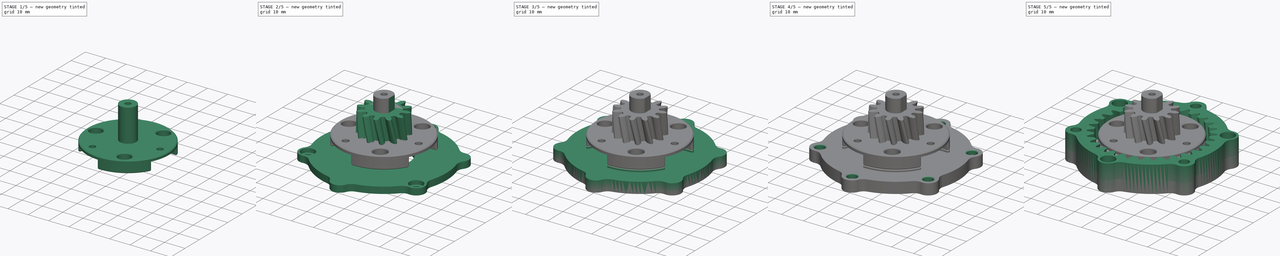
[diagram: build sequence overview — one tinted view per stage of 5, left to right]
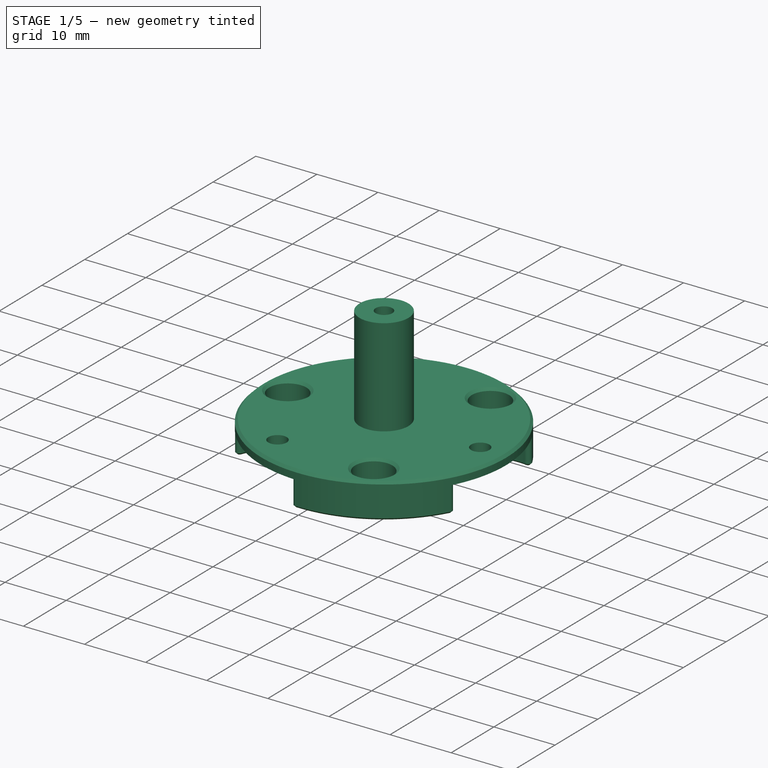
[diagram: stage 1 of 5 — iso view after this stage's code; geometry added in this stage tinted green]
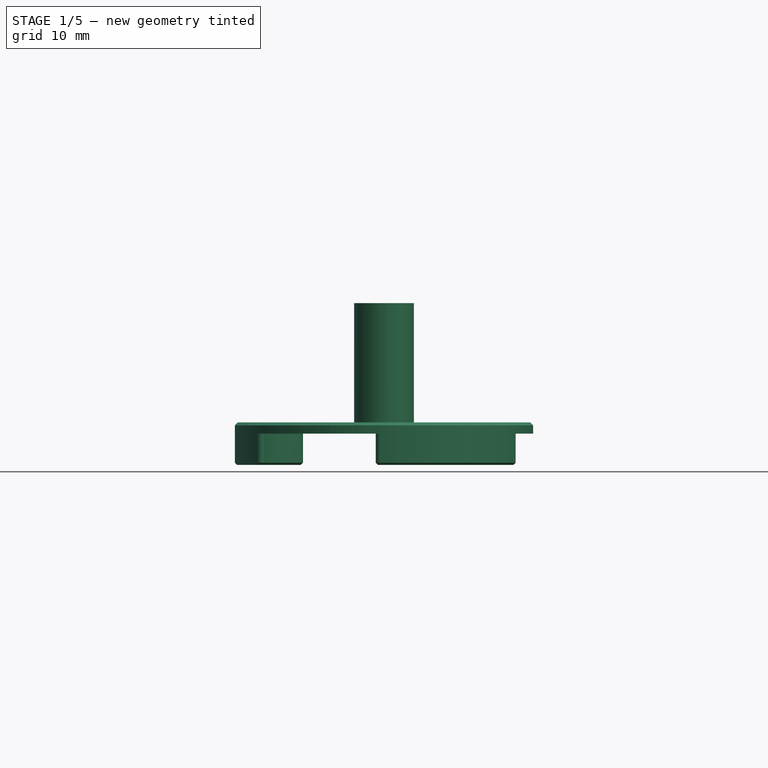
[diagram: stage 1 of 5 — front view after this stage's code; geometry added in this stage tinted green]
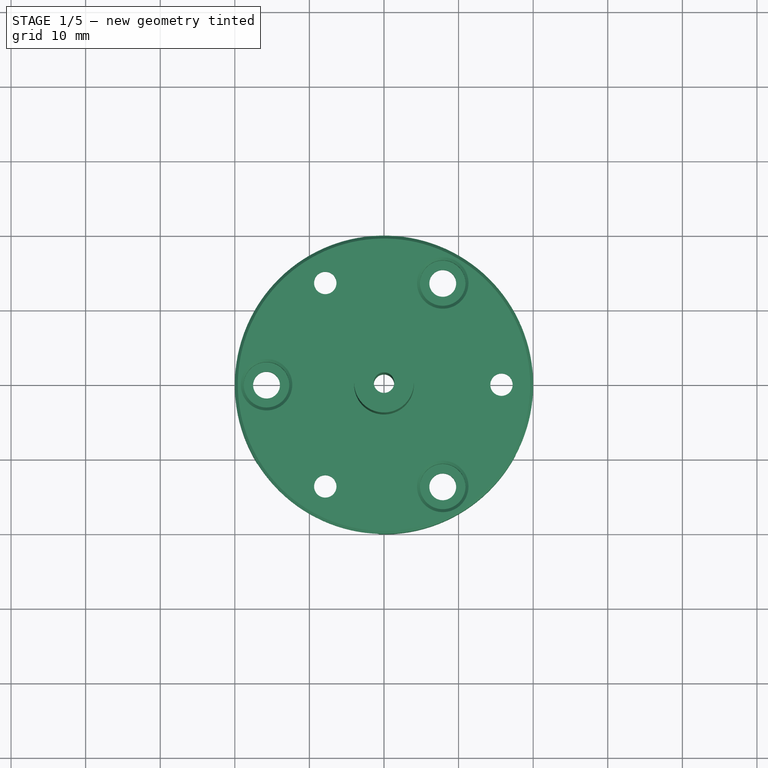
[diagram: stage 1 of 5 — top view after this stage's code; geometry added in this stage tinted green]
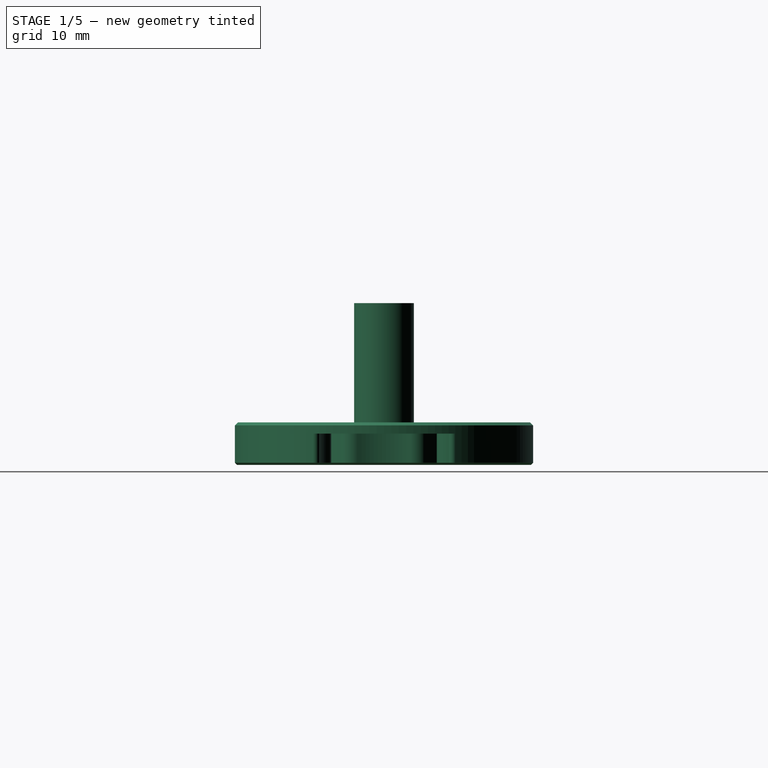
[diagram: stage 1 of 5 — right view after this stage's code; geometry added in this stage tinted green]
FCSTD DOCUMENT  (FreeCAD 0.20R29177 +426 (Git))
Label: PGear
License: Creative Commons Attribution
LicenseURL: http://creativecommons.org/licenses/by/4.0/
objects: Sketcher::SketchObject×25, PartDesign::Pocket×11, PartDesign::Body×11, PartDesign::Pad×9, PartDesign::Chamfer×6, PartDesign::Hole×5, PartDesign::FeaturePython×4, PartDesign::FeatureBase×4, PartDesign::Fillet×2, Spreadsheet::Sheet×1, Part::Feature×1, PartDesign::Plane×1
note: 112 computed .brp shape members not serialized (recipe doc carries the construction recipe); baked Part::Feature solids carry a one-line shape summary decoded from their .brp

FEATURE [Sketcher::SketchObject] Sketch008
  AttachmentOffset = pos=(0,0,11.7) rot=(0,0,1;0rad)
  FullyConstrained = true
  MapMode = 5
  Placement = pos=(0,0,11.7) rot=(0,0,1;0rad)
  Support = -> [XY_Plane006]
  expr: .AttachmentOffset.Base.z = <<param>>.s_higth - 0.3
  expr: Constraints[0] = <<param>>.t_ring * <<param>>.modul - 2 * <<param>>.modul - 2
  expr: Constraints[1] = <<param>>.r_planet
  sketch-geometry (7):
    g0: Circle CenterX=0 CenterY=0 CenterZ=0 NormalX=0 NormalY=0 NormalZ=1 AngleXU=0 Radius=20
    g1: Circle CenterX=0 CenterY=0 CenterZ=0 NormalX=0 NormalY=0 NormalZ=1 AngleXU=0 Radius=15.75
    g2: LineSegment StartX=0 StartY=0 StartZ=0 EndX=-7.875 EndY=13.6399 EndZ=0
    g3: LineSegment StartX=0 StartY=0 StartZ=0 EndX=-7.875 EndY=-13.6399 EndZ=0
    g4: Circle CenterX=-7.875 CenterY=13.6399 CenterZ=0 NormalX=0 NormalY=0 NormalZ=1 AngleXU=0 Radius=1.5
    g5: Circle CenterX=15.75 CenterY=0 CenterZ=0 NormalX=0 NormalY=0 NormalZ=1 AngleXU=0 Radius=1.5
    g6: Circle CenterX=-7.875 CenterY=-13.6399 CenterZ=0 NormalX=0 NormalY=0 NormalZ=1 AngleXU=0 Radius=1.5
  constraints (17):
    c: Diameter(g0) = 40
    c: Radius(g1) = 15.75
    c: PointOnObject(g2,g1)
    c: PointOnObject(g3,g1)
    c: Angle(g-1,g2) = 2.0944
    c: Angle(g2,g3) = 2.0944
    c: Coincident(g4,g2)
    c: PointOnObject(g5,g1)
    c: PointOnObject(g5,g-1)
    c: Coincident(g6,g3)
    c: Equal(g6,g4)
    c: Equal(g4,g5)
    c: Diameter(g4) = 3
    c: Coincident(g2,g3)
    c: Coincident(g2,g1)
    c: Coincident(g2,g-1)
    c: Coincident(g0,g1)
FEATURE [PartDesign::Pad] Pad002
  Direction = (0,0,1)
  Length = 1.5
  Length2 = 10
  Profile = -> Sketch008
  ReferenceAxis = -> Sketch008 [N_Axis]
  Reversed = true
  Type = 0
FEATURE [Sketcher::SketchObject] Sketch009
  AttachmentOffset = pos=(0,0,10.2) rot=(0,0,1;0rad)
  ExternalGeometry = -> [Sketch005]
  FullyConstrained = true
  MapMode = 5
  Placement = pos=(0,0,10.2) rot=(0,0,1;0rad)
  Support = -> [XY_Plane006]
  expr: .AttachmentOffset.Base.z = Sketch008.AttachmentOffset.Base.z - Pad002.Length
  expr: Constraints[17] = <<param>>.modul * <<param>>.t_planet + <<param>>.modul * 2 + 1
  sketch-geometry (24):
    g0: ArcOfCircle CenterX=-7.875 CenterY=13.6399 CenterZ=0 NormalX=0 NormalY=0 NormalZ=1 AngleXU=0 Radius=8.75 StartAngle=6.24154 EndAngle=6.94602
    g1: ArcOfCircle CenterX=-7.875 CenterY=13.6399 CenterZ=0 NormalX=0 NormalY=0 NormalZ=1 AngleXU=0 Radius=8.75 StartAngle=3.52596 EndAngle=4.23044
    g2: ArcOfCircle CenterX=15.75 CenterY=0 CenterZ=0 NormalX=0 NormalY=0 NormalZ=1 AngleXU=0 Radius=8.75 StartAngle=1.43156 EndAngle=2.13604
    g3: ArcOfCircle CenterX=15.75 CenterY=0 CenterZ=0 NormalX=0 NormalY=0 NormalZ=1 AngleXU=0 Radius=8.75 StartAngle=4.14714 EndAngle=4.85162
    g4: ArcOfCircle CenterX=-7.875 CenterY=-13.6399 CenterZ=0 NormalX=0 NormalY=0 NormalZ=1 AngleXU=0 Radius=8.75 StartAngle=5.62035 EndAngle=6.32483
    g5: ArcOfCircle CenterX=-7.875 CenterY=-13.6399 CenterZ=0 NormalX=0 NormalY=0 NormalZ=1 AngleXU=0 Radius=8.75 StartAngle=2.05275 EndAngle=2.75723
    g6: ArcOfCircle CenterX=0 CenterY=0 CenterZ=0 NormalX=0 NormalY=0 NormalZ=1 AngleXU=0 Radius=11.5 StartAngle=2.83189 EndAngle=3.45129
    g7: ArcOfCircle CenterX=0 CenterY=0 CenterZ=0 NormalX=0 NormalY=0 NormalZ=1 AngleXU=0 Radius=11.5 StartAngle=0.737499 EndAngle=1.3569
    g8: ArcOfCircle CenterX=0 CenterY=0 CenterZ=0 NormalX=0 NormalY=0 NormalZ=1 AngleXU=0 Radius=11.5 StartAngle=4.92629 EndAngle=5.54569
    g9: ArcOfCircle CenterX=0 CenterY=0 CenterZ=0 NormalX=0 NormalY=0 NormalZ=1 AngleXU=0 Radius=20 StartAngle=0.497574 EndAngle=1.59682
    g10: ArcOfCircle CenterX=0 CenterY=0 CenterZ=0 NormalX=0 NormalY=0 NormalZ=1 AngleXU=0 Radius=20 StartAngle=4.68636 EndAngle=5.78561
    g11: ArcOfCircle CenterX=0 CenterY=0 CenterZ=0 NormalX=0 NormalY=0 NormalZ=1 AngleXU=0 Radius=20 StartAngle=2.59197 EndAngle=3.69122
    g12: ArcOfCircle CenterX=-16.5428 CenterY=10.1339 CenterZ=0 NormalX=0 NormalY=0 NormalZ=1 AngleXU=0 Radius=0.6 StartAngle=0.384367 EndAngle=2.59197
    g13: ArcOfCircle CenterX=-16.5428 CenterY=-10.1339 CenterZ=0 NormalX=0 NormalY=0 NormalZ=1 AngleXU=0 Radius=0.6 StartAngle=3.69122 EndAngle=5.89882
    g14: ArcOfCircle CenterX=-0.504831 CenterY=-19.3934 CenterZ=0 NormalX=0 NormalY=0 NormalZ=1 AngleXU=0 Radius=0.6 StartAngle=2.47876 EndAngle=4.68636
    g15: ArcOfCircle CenterX=17.0476 CenterY=-9.25952 CenterZ=0 NormalX=0 NormalY=0 NormalZ=1 AngleXU=0 Radius=0.6 StartAngle=5.78561 EndAngle=7.99321
    g16: ArcOfCircle CenterX=17.0476 CenterY=9.25952 CenterZ=0 NormalX=0 NormalY=0 NormalZ=1 AngleXU=0 Radius=0.6 StartAngle=4.57316 EndAngle=6.78076
    g17: ArcOfCircle CenterX=-0.504831 CenterY=19.3934 CenterZ=0 NormalX=0 NormalY=0 NormalZ=1 AngleXU=0 Radius=0.6 StartAngle=1.59682 EndAngle=3.80442
    g18: ArcOfCircle CenterX=-12.8577 CenterY=4.11442 CenterZ=0 NormalX=0 NormalY=0 NormalZ=1 AngleXU=0 Radius=2 StartAngle=5.97349 EndAngle=7.37203
    g19: ArcOfCircle CenterX=-12.8577 CenterY=-4.11442 CenterZ=0 NormalX=0 NormalY=0 NormalZ=1 AngleXU=0 Radius=2 StartAngle=5.19434 EndAngle=6.59288
    g20: ArcOfCircle CenterX=9.99206 CenterY=-9.07792 CenterZ=0 NormalX=0 NormalY=0 NormalZ=1 AngleXU=0 Radius=2 StartAngle=1.00555 EndAngle=2.40409
    g21: ArcOfCircle CenterX=2.86568 CenterY=-13.1923 CenterZ=0 NormalX=0 NormalY=0 NormalZ=1 AngleXU=0 Radius=2 StartAngle=1.7847 EndAngle=3.18324
    g22: ArcOfCircle CenterX=2.86568 CenterY=13.1923 CenterZ=0 NormalX=0 NormalY=0 NormalZ=1 AngleXU=0 Radius=2 StartAngle=3.09995 EndAngle=4.49849
    g23: ArcOfCircle CenterX=9.99206 CenterY=9.07792 CenterZ=0 NormalX=0 NormalY=0 NormalZ=1 AngleXU=0 Radius=2 StartAngle=3.87909 EndAngle=5.27763
  constraints (60):
    c: Coincident(g0,g-4)
    c: Coincident(g1,g0)
    c: Coincident(g2,g-3)
    c: Coincident(g3,g2)
    c: Coincident(g4,g-5)
    c: Coincident(g5,g4)
    c: Coincident(g6,g-7)
    c: Coincident(g7,g6)
    c: Coincident(g8,g6)
    c: Coincident(g9,g6)
    c: Coincident(g10,g6)
    c: Coincident(g11,g6)
    c: Equal(g5,g1)
    c: Equal(g1,g0)
    c: Equal(g0,g2)
    c: Equal(g2,g3)
    c: Equal(g3,g4)
    c: Diameter(g2) = 17.5
    c: Tangent(g1,g12) = 1.5708
    c: Tangent(g11,g12) = -1.5708
    c: Tangent(g5,g13) = 1.5708
    c: Tangent(g11,g13) = -1.5708
    c: Tangent(g4,g14) = 1.5708
    c: Tangent(g10,g14) = -1.5708
    c: Tangent(g10,g15) = -1.5708
    c: Tangent(g3,g15) = 1.5708
    c: Tangent(g2,g16) = 1.5708
    c: Tangent(g9,g16) = -1.5708
    c: Tangent(g0,g17) = 1.5708
    c: Tangent(g9,g17) = -1.5708
    c: Tangent(g1,g18) = 1.5708
    c: Tangent(g6,g18) = 1.5708
    c: Tangent(g5,g19) = 1.5708
    c: Tangent(g6,g19) = 1.5708
    c: Tangent(g3,g20) = 1.5708
    c: Tangent(g8,g20) = 1.5708
    c: Tangent(g4,g21) = 1.5708
    c: Tangent(g8,g21) = 1.5708
    c: Tangent(g0,g22) = 1.5708
    c: Tangent(g7,g22) = 1.5708
    c: Tangent(g2,g23) = 1.5708
    c: Tangent(g7,g23) = 1.5708
    c: PointOnObject(g7,g-6)
    c: PointOnObject(g6,g-6)
    c: PointOnObject(g11,g-7)
    c: PointOnObject(g10,g-7)
    c: PointOnObject(g9,g-7)
    c: Radius(g14) = 0.6
    c: PointOnObject(g8,g-6)
    c: Equal(g19,g18)
    c: Equal(g18,g22)
    c: Equal(g22,g23)
    c: Equal(g23,g20)
    c: Equal(g20,g21)
    c: Radius(g21) = 2
    c: Equal(g14,g15)
    c: Equal(g15,g16)
    c: Equal(g16,g17)
    c: Equal(g17,g12)
    c: Equal(g12,g13)
FEATURE [PartDesign::Pad] Pad003
  BaseFeature = -> Pad002
  Direction = (0,0,1)
  Length = 4.2
  Length2 = 10
  Profile = -> Sketch009
  ReferenceAxis = -> Sketch009 [N_Axis]
  Reversed = true
  Type = 0
  expr: Length = <<param>>.s_higth / 2 - (<<param>>.s_higth - Sketch008.AttachmentOffset.Base.z / 1mm + Pad002.Length / 1mm)
FEATURE [Sketcher::SketchObject] Sketch010
  AttachmentOffset = pos=(0,0,11.7) rot=(0,0,1;0rad)
  FullyConstrained = true
  MapMode = 5
  Placement = pos=(0,0,11.7) rot=(0,0,1;0rad)
  Support = -> [XY_Plane006]
  expr: .AttachmentOffset.Base.z = Sketch008.AttachmentOffset.Base.z
  expr: Constraints[16] = <<param>>.r_planet * 2
  sketch-geometry (7):
    g0: Circle CenterX=0 CenterY=0 CenterZ=0 NormalX=0 NormalY=0 NormalZ=1 AngleXU=0 Radius=15.75
    g1: LineSegment StartX=0 StartY=0 StartZ=0 EndX=7.875 EndY=13.6399 EndZ=0
    g2: LineSegment StartX=0 StartY=0 StartZ=0 EndX=7.875 EndY=-13.6399 EndZ=0
    g3: LineSegment StartX=0 StartY=0 StartZ=0 EndX=-15.75 EndY=0 EndZ=0
    g4: Circle CenterX=7.875 CenterY=13.6399 CenterZ=0 NormalX=0 NormalY=0 NormalZ=1 AngleXU=0 Radius=1.65
    g5: Circle CenterX=-15.75 CenterY=0 CenterZ=0 NormalX=0 NormalY=0 NormalZ=1 AngleXU=0 Radius=1.65
    g6: Circle CenterX=7.875 CenterY=-13.6399 CenterZ=0 NormalX=0 NormalY=0 NormalZ=1 AngleXU=0 Radius=1.65
  constraints (17):
    c: Coincident(g0,g-1)
    c: Coincident(g1,g0)
    c: PointOnObject(g1,g0)
    c: Coincident(g2,g0)
    c: PointOnObject(g2,g0)
    c: Coincident(g3,g0)
    c: PointOnObject(g3,g0)
    c: PointOnObject(g3,g-1)
    c: Angle(g2,g1) = 2.0944
    c: Angle(g-1,g1) = 1.0472
    c: Coincident(g4,g1)
    c: Coincident(g5,g3)
    c: Coincident(g6,g2)
    c: Equal(g6,g5)
    c: Equal(g5,g4)
    c: Diameter(g4) = 3.3
    c: Diameter(g0) = 31.5
FEATURE [PartDesign::Hole] Hole002
  BaseFeature = -> Pad003
  CustomThreadClearance = 0
  Depth = 114.847
  DepthType = 1
  Diameter = 3.6
  DrillForDepth = false
  DrillPoint = 1
  DrillPointAngle = 118
  HoleCutCountersinkAngle = 90
  HoleCutCustomValues = false
  HoleCutDepth = 3.1
  HoleCutDiameter = 6.1
  HoleCutType = 1
  ModelThread = false
  Profile = -> Sketch010
  Tapered = false
  TaperedAngle = 90
  ThreadClass = 0
  ThreadDepth = 114.847
  ThreadDepthType = 0
  ThreadDirection = 0
  ThreadFit = 2
  ThreadSize = 9
  ThreadType = 1
  Threaded = false
  UseCustomThreadClearance = false
FEATURE [PartDesign::Body] Body006  label="MotorPlate"
  Group = -> [Sketch011,Pad004,Sketch014,Sketch015,Pocket005,Hole003,Sketch016,Pocket006,Fillet,Chamfer]
  Origin = -> Origin008
  Placement = pos=(0,0,-5) rot=(0,0,1;0rad)
  Tip = -> Chamfer
FEATURE [PartDesign::Chamfer] Chamfer004
  Angle = 45
  Base = -> Hole002 [Face34,Face36,Face35]
  BaseFeature = -> Hole002
  ChamferType = 0
  FlipDirection = false
  Size = 0.3
  Size2 = 1
  SupportTransform = false
  UseAllEdges = false
FEATURE [PartDesign::Chamfer] Chamfer005
  Angle = 45
  Base = -> Chamfer004 [Edge11,Edge61,Edge58,Edge56]
  BaseFeature = -> Chamfer004
  ChamferType = 0
  FlipDirection = false
  Size = 0.4
  Size2 = 1
  SupportTransform = false
  UseAllEdges = false
FEATURE [PartDesign::Body] Body007  label="TopPlate"
  Group = -> [Sketch020,Pad005,Sketch021,Hole004,Fillet001,Chamfer008]
  Origin = -> Origin009
  Placement = pos=(0,0,12) rot=(0,0,1;0rad)
  Tip = -> Chamfer008
FEATURE [PartDesign::FeatureBase] Clone003
  BaseFeature = -> Body004
FEATURE [Sketcher::SketchObject] Sketch022
  AttachmentOffset = pos=(0,0,11.7) rot=(0,0,1;0rad)
  FullyConstrained = true
  MapMode = 5
  Placement = pos=(0,0,11.7) rot=(0,0,1;0rad)
  Support = -> [XY_Plane010]
  expr: .AttachmentOffset.Base.z = Sketch008.AttachmentOffset.Base.z
  sketch-geometry (1):
    g0: Circle CenterX=0 CenterY=0 CenterZ=0 NormalX=0 NormalY=0 NormalZ=1 AngleXU=0 Radius=4
  constraints (2):
    c: Coincident(g0,g-1)
    c: Diameter(g0) = 8
FEATURE [PartDesign::Pad] Pad006
  BaseFeature = -> Clone003
  Direction = (0,0,1)
  Length = 16
  Length2 = 10
  Profile = -> Sketch022
  ReferenceAxis = -> Sketch022 [N_Axis]
  Type = 0
FEATURE [Sketcher::SketchObject] Sketch023
  AttachmentOffset = pos=(0,0,27.7) rot=(0,0,1;0rad)
  FullyConstrained = true
  MapMode = 5
  Placement = pos=(0,0,27.7) rot=(0,0,1;0rad)
  Support = -> [XY_Plane010]
  expr: .AttachmentOffset.Base.z = Sketch008.AttachmentOffset.Base.z + Pad006.Length
  sketch-geometry (1):
    g0: Circle CenterX=0 CenterY=0 CenterZ=0 NormalX=0 NormalY=0 NormalZ=1 AngleXU=0 Radius=1.375
  constraints (2):
    c: Coincident(g0,g-1)
    c: Diameter(g0) = 2.75
FEATURE [PartDesign::Pocket] Pocket010
  BaseFeature = -> Pad006
  Direction = (0,0,-1)
  Length = 5
  Length2 = 5
  Profile = -> Sketch023
  ReferenceAxis = -> Sketch023 [N_Axis]
  Type = 1
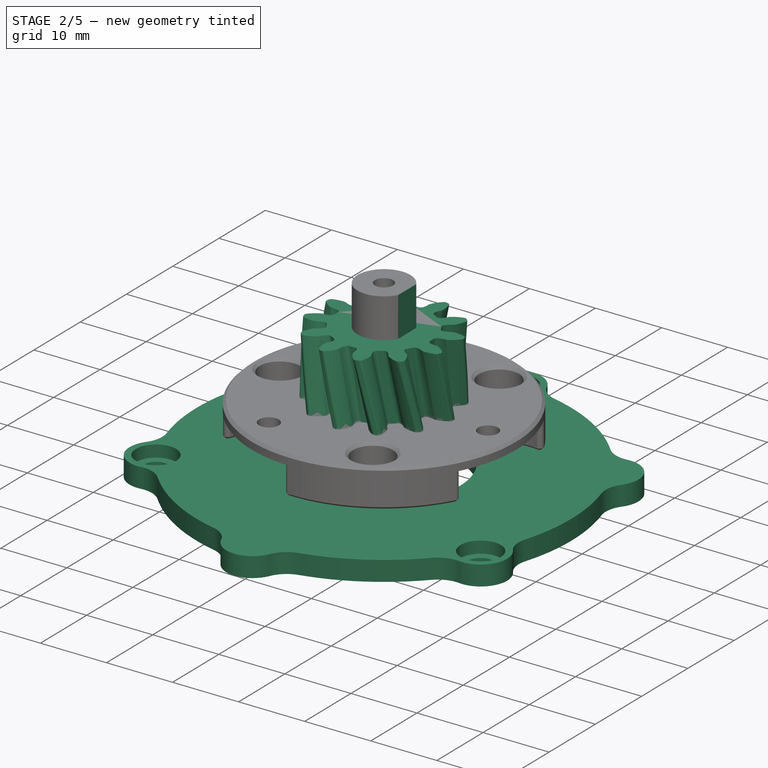
[diagram: stage 2 of 5 — iso view after this stage's code; geometry added in this stage tinted green]
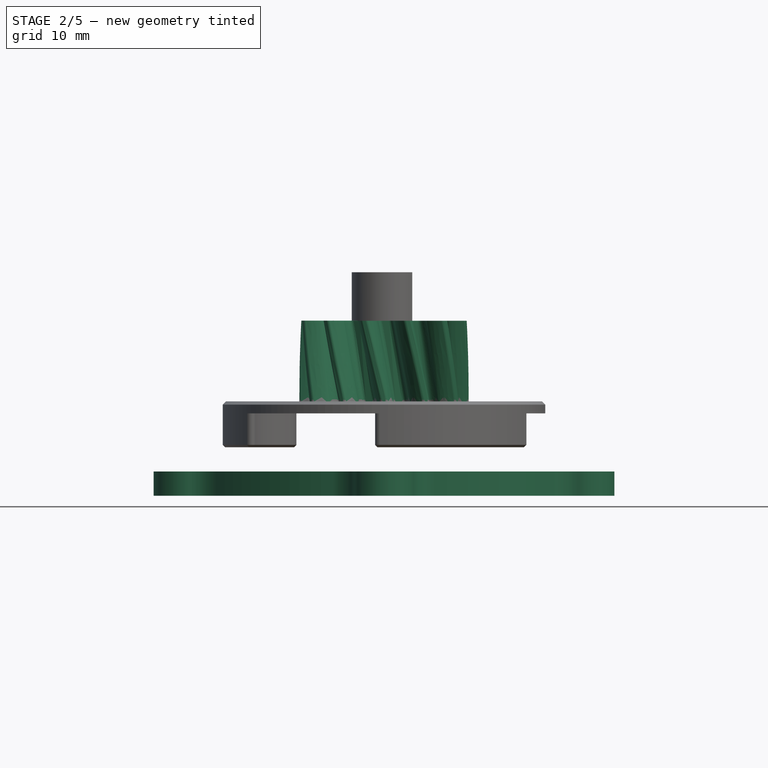
[diagram: stage 2 of 5 — front view after this stage's code; geometry added in this stage tinted green]
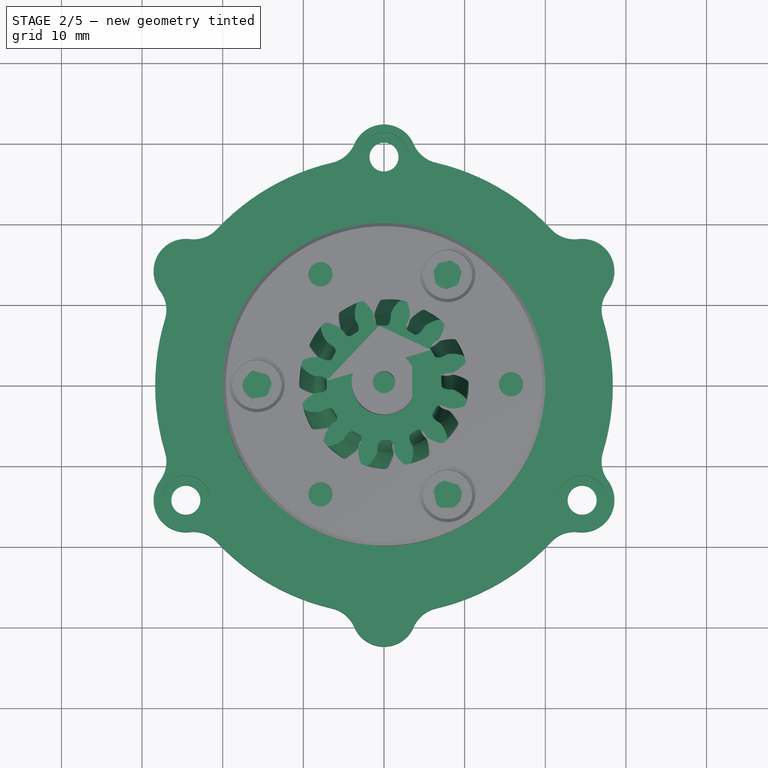
[diagram: stage 2 of 5 — top view after this stage's code; geometry added in this stage tinted green]
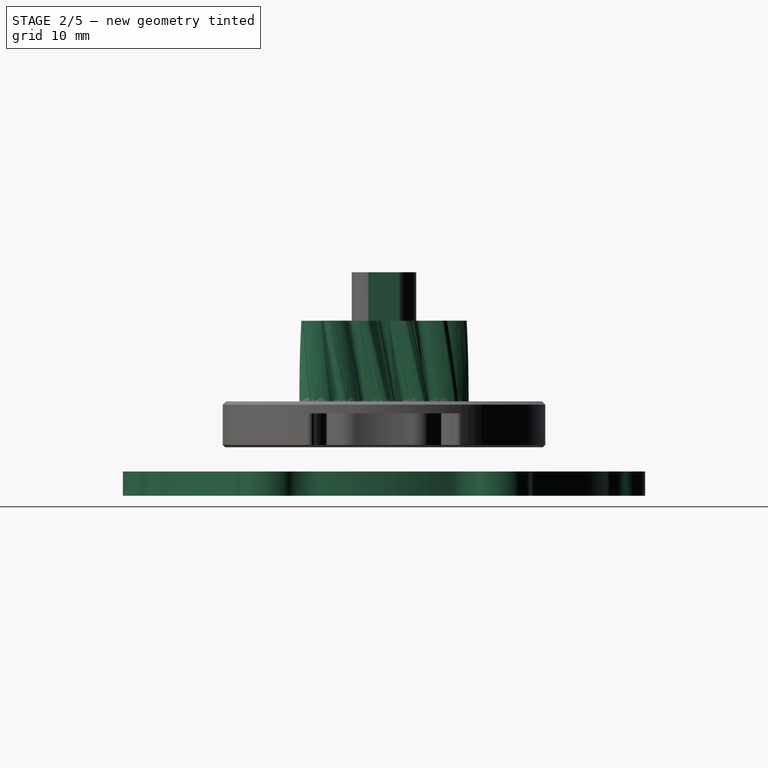
[diagram: stage 2 of 5 — right view after this stage's code; geometry added in this stage tinted green]
FEATURE [PartDesign::FeaturePython] InternalInvoluteGear  label="InternalInvoluteGear.Ring"  # WARN: FeaturePython — macro-defined, semantics opaque (R4)
  AttacherType = Attacher::AttachEngine3D
  MapMode = 5
  Support = -> [XY_Plane001]
  angular_backlash = 0.254648
  backlash = 0.1
  beta = 12
  clearance = 0.25
  da = 43.2
  df = 48.75
  double_helix = false
  dw = 45
  head = -0.4
  head_fillet = 0.3
  height = 12
  module = 1.5
  numpoints = 6
  outside_diameter = 69
  pressure_angle = 20
  properties_from_tool = false
  reversed_backlash = false
  root_fillet = 0.3
  shift = 0
  simple = false
  teeth = 30
  thickness = 12
  transverse_pitch = 4.71239
  version = 0.0.4
  expr: angular_backlash = backlash / dw * 360° / pi
  expr: backlash = <<param>>.backlash
  expr: beta = <<param>>.beta
  expr: head_fillet = <<param>>.head_fillet
  expr: height = <<param>>.s_higth
  expr: module = <<param>>.modul
  expr: root_fillet = <<param>>.root_fillet
  expr: teeth = <<param>>.t_ring
FEATURE [PartDesign::Body] Body004  label="Carrier_top_base"
  Group = -> [Sketch008,Pad002,Sketch009,Pad003,Sketch010,Hole002,Chamfer004,Chamfer005]
  Origin = -> Origin006
  Tip = -> Chamfer005
FEATURE [PartDesign::FeatureBase] Clone002
  BaseFeature = -> Body004
FEATURE [PartDesign::FeaturePython] InvoluteGear002  # WARN: FeaturePython — macro-defined, semantics opaque (R4)
  AttacherType = Attacher::AttachEngine3D
  AttachmentOffset = pos=(0,0,11.7) rot=(0,0,1;0rad)
  BaseFeature = -> Clone002
  MapMode = 5
  Placement = pos=(0,0,11.7) rot=(0,0,1;0rad)
  Support = -> [XY_Plane007]
  angular_backlash = 0.63662
  backlash = 0.1
  beta = -12
  clearance = 0.25
  da = 21
  df = 14.25
  double_helix = false
  dw = 18
  head = 0
  head_fillet = 0.3
  height = 10
  module = 1.5
  numpoints = 6
  pressure_angle = 20
  properties_from_tool = false
  reversed_backlash = false
  root_fillet = 0
  shift = 0
  simple = false
  teeth = 12
  transverse_pitch = 4.71239
  undercut = true
  version = 0.0.4
  expr: .AttachmentOffset.Base.z = Sketch008.AttachmentOffset.Base.z
  expr: angular_backlash = backlash / dw * 360° / pi
  expr: backlash = <<param>>.backlash
  expr: beta = -<<param>>.beta
  expr: dw = teeth * module
  expr: head_fillet = <<param>>.head_fillet
  expr: height = <<param>>.g_hight + (<<param>>.s_higth - <<param>>.g_hight) / 2
  expr: module = <<param>>.modul
  expr: teeth = <<param>>.t_sun
FEATURE [PartDesign::Body] Body003  label="Carrier_bottom"
  Group = -> [Sketch005,Pad,Sketch006,Pad001,Sketch007,Pocket002,Chamfer006,Chamfer007]
  Origin = -> Origin005
  Tip = -> Chamfer007
FEATURE [Sketcher::SketchObject] Sketch020
  FullyConstrained = true
  MapMode = 5
  Support = -> [XY_Plane009]
  expr: Constraints[18] = InternalInvoluteGear.df + 8mm
  expr: Constraints[81] = <<param>>.t_sun * <<param>>.modul + 2 * <<param>>.modul + 2
  sketch-geometry (32):
    g0: LineSegment StartX=24.5735 StartY=14.1875 StartZ=0 EndX=0 EndY=28.375 EndZ=0
    g1: LineSegment StartX=0 StartY=28.375 StartZ=0 EndX=-24.5735 EndY=14.1875 EndZ=0
    g2: LineSegment StartX=-24.5735 StartY=14.1875 StartZ=0 EndX=-24.5735 EndY=-14.1875 EndZ=0
    g3: LineSegment StartX=-24.5735 StartY=-14.1875 StartZ=0 EndX=0 EndY=-28.375 EndZ=0
    g4: LineSegment StartX=5e-16 StartY=-28.375 StartZ=0 EndX=24.5735 EndY=-14.1875 EndZ=0
    g5: LineSegment StartX=24.5735 StartY=-14.1875 StartZ=0 EndX=24.5735 EndY=14.1875 EndZ=0
    g6: Circle CenterX=0 CenterY=0 CenterZ=0 NormalX=0 NormalY=0 NormalZ=1 AngleXU=0 Radius=28.375
    g7: ArcOfCircle CenterX=0 CenterY=28.375 CenterZ=0 NormalX=0 NormalY=0 NormalZ=1 AngleXU=0 Radius=4 StartAngle=0.405277 EndAngle=2.73632
    g8: ArcOfCircle CenterX=24.5735 CenterY=14.1875 CenterZ=0 NormalX=0 NormalY=0 NormalZ=1 AngleXU=0 Radius=4 StartAngle=5.64126 EndAngle=7.9723
    g9: ArcOfCircle CenterX=-24.5735 CenterY=14.1875 CenterZ=0 NormalX=0 NormalY=0 NormalZ=1 AngleXU=0 Radius=4 StartAngle=1.45247 EndAngle=3.78351
    g10: ArcOfCircle CenterX=-24.5735 CenterY=-14.1875 CenterZ=0 NormalX=0 NormalY=0 NormalZ=1 AngleXU=0 Radius=4 StartAngle=2.49967 EndAngle=4.83071
    g11: ArcOfCircle CenterX=5e-16 CenterY=-28.375 CenterZ=0 NormalX=0 NormalY=0 NormalZ=1 AngleXU=0 Radius=4 StartAngle=3.54687 EndAngle=5.87791
    g12: ArcOfCircle CenterX=24.5735 CenterY=-14.1875 CenterZ=0 NormalX=0 NormalY=0 NormalZ=1 AngleXU=0 Radius=4 StartAngle=4.59407 EndAngle=6.92511
    g13: ArcOfCircle CenterX=0 CenterY=0 CenterZ=0 NormalX=0 NormalY=0 NormalZ=1 AngleXU=0 Radius=28.375 StartAngle=0.752684 EndAngle=1.34171
    g14: ArcOfCircle CenterX=0 CenterY=0 CenterZ=0 NormalX=0 NormalY=0 NormalZ=1 AngleXU=0 Radius=28.375 StartAngle=5.98867 EndAngle=6.5777
    g15: ArcOfCircle CenterX=0 CenterY=0 CenterZ=0 NormalX=0 NormalY=0 NormalZ=1 AngleXU=0 Radius=28.375 StartAngle=1.79988 EndAngle=2.38891
    g16: ArcOfCircle CenterX=0 CenterY=0 CenterZ=0 NormalX=0 NormalY=0 NormalZ=1 AngleXU=0 Radius=28.375 StartAngle=2.84708 EndAngle=3.43611
    g17: ArcOfCircle CenterX=0 CenterY=0 CenterZ=0 NormalX=0 NormalY=0 NormalZ=1 AngleXU=0 Radius=28.375 StartAngle=3.89428 EndAngle=4.4833
    g18: ArcOfCircle CenterX=0 CenterY=0 CenterZ=0 NormalX=0 NormalY=0 NormalZ=1 AngleXU=0 Radius=28.375 StartAngle=4.94147 EndAngle=5.5305
    g19: ArcOfCircle CenterX=23.6291 CenterY=-22.1316 CenterZ=0 NormalX=0 NormalY=0 NormalZ=1 AngleXU=0 Radius=4 StartAngle=1.45247 EndAngle=2.38891
    g20: ArcOfCircle CenterX=30.981 CenterY=-9.39762 CenterZ=0 NormalX=0 NormalY=0 NormalZ=1 AngleXU=0 Radius=4 StartAngle=2.84708 EndAngle=3.78351
    g21: ArcOfCircle CenterX=30.981 CenterY=9.39762 CenterZ=0 NormalX=0 NormalY=0 NormalZ=1 AngleXU=0 Radius=4 StartAngle=2.49967 EndAngle=3.43611
    g22: ArcOfCircle CenterX=23.6291 CenterY=22.1316 CenterZ=0 NormalX=0 NormalY=0 NormalZ=1 AngleXU=0 Radius=4 StartAngle=3.89428 EndAngle=4.83071
    g23: ArcOfCircle CenterX=7.35195 CenterY=31.5292 CenterZ=0 NormalX=0 NormalY=0 NormalZ=1 AngleXU=0 Radius=4 StartAngle=3.54687 EndAngle=4.4833
    g24: ArcOfCircle CenterX=-7.35195 CenterY=31.5292 CenterZ=0 NormalX=0 NormalY=0 NormalZ=1 AngleXU=0 Radius=4 StartAngle=4.94147 EndAngle=5.87791
    g25: ArcOfCircle CenterX=-23.6291 CenterY=22.1316 CenterZ=0 NormalX=0 NormalY=0 NormalZ=1 AngleXU=0 Radius=4 StartAngle=4.59407 EndAngle=5.5305
    g26: ArcOfCircle CenterX=-30.981 CenterY=9.39762 CenterZ=0 NormalX=0 NormalY=0 NormalZ=1 AngleXU=0 Radius=4 StartAngle=5.98867 EndAngle=6.92511
    g27: ArcOfCircle CenterX=-30.981 CenterY=-9.39762 CenterZ=0 NormalX=0 NormalY=0 NormalZ=1 AngleXU=0 Radius=4 StartAngle=5.64126 EndAngle=6.5777
    g28: ArcOfCircle CenterX=-23.6291 CenterY=-22.1316 CenterZ=0 NormalX=0 NormalY=0 NormalZ=1 AngleXU=0 Radius=4 StartAngle=0.752684 EndAngle=1.68912
    g29: ArcOfCircle CenterX=-7.35195 CenterY=-31.5292 CenterZ=0 NormalX=0 NormalY=0 NormalZ=1 AngleXU=0 Radius=4 StartAngle=0.405277 EndAngle=1.34171
    g30: ArcOfCircle CenterX=7.35195 CenterY=-31.5292 CenterZ=0 NormalX=0 NormalY=0 NormalZ=1 AngleXU=0 Radius=4 StartAngle=1.79988 EndAngle=2.73632
    g31: Circle CenterX=0 CenterY=0 CenterZ=0 NormalX=0 NormalY=0 NormalZ=1 AngleXU=0 Radius=11.5
  constraints (78):
    c: Coincident(g0,g1)
    c: Coincident(g1,g2)
    c: Coincident(g2,g3)
    c: Coincident(g3,g4)
    c: Coincident(g4,g5)
    c: Coincident(g5,g0)
    c: Equal(g0, g1-g5) x5
    c: PointOnObject(g0,g6)
    c: PointOnObject(g1,g6)
    c: PointOnObject(g2,g6)
    c: PointOnObject(g3,g6)
    c: PointOnObject(g4,g6)
    c: PointOnObject(g5,g6)
    c: PointOnObject(g0,g-2)
    c: Diameter(g6) = 56.75
    c: Coincident(g6,g-1)
    c: Coincident(g7,g0)
    c: Coincident(g8,g0)
    c: Coincident(g9,g1)
    c: Coincident(g10,g2)
    c: Coincident(g11,g3)
    c: Coincident(g12,g4)
    c: Coincident(g13,g6)
    c: Coincident(g14,g13)
    c: Coincident(g15,g13)
    c: Coincident(g16,g13)
    c: Coincident(g17,g13)
    c: Coincident(g18,g13)
    c: Equal(g18,g14)
    c: Equal(g14,g13)
    c: Equal(g13,g15)
    c: Equal(g15,g16)
    c: Equal(g16,g17)
    c: Equal(g9,g7)
    c: Equal(g7,g8)
    c: Equal(g8,g12)
    c: Equal(g12,g11)
    c: Equal(g11,g10)
    c: Radius(g8) = 4
    c: Tangent(g22,g8) = 1.5708
    c: Tangent(g21,g8) = 1.5708
    c: Tangent(g21,g14) = 1.5708
    c: Tangent(g20,g14) = 1.5708
    c: Tangent(g20,g12) = 1.5708
    c: Tangent(g19,g12) = 1.5708
    c: Tangent(g19,g18) = 1.5708
    c: Tangent(g30,g18) = 1.5708
    c: Tangent(g30,g11) = 1.5708
    c: Tangent(g29,g11) = 1.5708
    c: Tangent(g29,g17) = 1.5708
    c: Tangent(g28,g17) = 1.5708
    c: Tangent(g28,g10) = 1.5708
    c: Tangent(g27,g10) = 1.5708
    c: Tangent(g27,g16) = 1.5708
    c: Tangent(g22,g13) = 1.5708
    c: Tangent(g23,g13) = 1.5708
    c: Tangent(g23,g7) = 1.5708
    c: Tangent(g24,g7) = 1.5708
    c: Tangent(g24,g15) = 1.5708
    c: Tangent(g25,g15) = 1.5708
    c: Tangent(g25,g9) = 1.5708
    c: Tangent(g26,g9) = 1.5708
    c: Tangent(g26,g16) = 1.5708
    c: Equal(g23,g22)
    c: Equal(g22,g21)
    c: Equal(g21,g20)
    c: Equal(g20,g19)
    c: Equal(g19,g30)
    c: Equal(g30,g29)
    c: Equal(g29,g28)
    c: Equal(g28,g27)
    c: Equal(g27,g26)
    c: Equal(g26,g25)
    c: Equal(g25,g24)
    c: Equal(g18,g6)
    c: Equal(g8,g22)
    c: Coincident(g31,g13)
    c: Diameter(g31) = 23
FEATURE [PartDesign::Pad] Pad005
  Direction = (0,0,1)
  Length = 3
  Length2 = 10
  Profile = -> Sketch020
  ReferenceAxis = -> Sketch020 [N_Axis]
  Type = 0
FEATURE [Sketcher::SketchObject] Sketch021
  AttachmentOffset = pos=(0,0,3) rot=(0,0,1;0rad)
  FullyConstrained = true
  MapMode = 5
  Placement = pos=(0,0,3) rot=(0,0,1;0rad)
  Support = -> [XY_Plane009]
  expr: .AttachmentOffset.Base.z = Pad005.Length
  expr: Constraints[18] = Sketch020.Constraints[18]
  sketch-geometry (10):
    g0: LineSegment StartX=24.5735 StartY=14.1875 StartZ=0 EndX=0 EndY=28.375 EndZ=0
    g1: LineSegment StartX=0 StartY=28.375 StartZ=0 EndX=-24.5735 EndY=14.1875 EndZ=0
    g2: LineSegment StartX=-24.5735 StartY=14.1875 StartZ=0 EndX=-24.5735 EndY=-14.1875 EndZ=0
    g3: LineSegment StartX=-24.5735 StartY=-14.1875 StartZ=0 EndX=0 EndY=-28.375 EndZ=0
    g4: LineSegment StartX=0 StartY=-28.375 StartZ=0 EndX=24.5735 EndY=-14.1875 EndZ=0
    g5: LineSegment StartX=24.5735 StartY=-14.1875 StartZ=0 EndX=24.5735 EndY=14.1875 EndZ=0
    g6: Circle CenterX=0 CenterY=0 CenterZ=0 NormalX=0 NormalY=0 NormalZ=1 AngleXU=0 Radius=28.375
    g7: Circle CenterX=0 CenterY=28.375 CenterZ=0 NormalX=0 NormalY=0 NormalZ=1 AngleXU=0 Radius=1.75
    g8: Circle CenterX=24.5735 CenterY=-14.1875 CenterZ=0 NormalX=0 NormalY=0 NormalZ=1 AngleXU=0 Radius=1.75
    g9: Circle CenterX=-24.5735 CenterY=-14.1875 CenterZ=0 NormalX=0 NormalY=0 NormalZ=1 AngleXU=0 Radius=1.75
  constraints (22):
    c: Coincident(g0,g1)
    c: Coincident(g1,g2)
    c: Coincident(g2,g3)
    c: Coincident(g3,g4)
    c: Coincident(g4,g5)
    c: Coincident(g5,g0)
    c: Equal(g0, g1-g5) x5
    c: PointOnObject(g0,g6)
    c: PointOnObject(g1,g6)
    c: PointOnObject(g2,g6)
    c: PointOnObject(g3,g6)
    c: PointOnObject(g4,g6)
    c: PointOnObject(g5,g6)
    c: PointOnObject(g0,g-2)
    c: Diameter(g6) = 56.75
    c: Coincident(g6,g-1)
    c: Coincident(g7,g0)
    c: Coincident(g8,g4)
    c: Coincident(g9,g2)
    c: Equal(g7,g9)
    c: Equal(g9,g8)
    c: Diameter(g7) = 3.5
FEATURE [PartDesign::Hole] Hole004
  BaseFeature = -> Pad005
  CustomThreadClearance = 0
  Depth = 174.529
  DepthType = 1
  Diameter = 3.6
  DrillForDepth = false
  DrillPoint = 1
  DrillPointAngle = 118
  HoleCutCountersinkAngle = 90
  HoleCutCustomValues = false
  HoleCutDepth = 1.8
  HoleCutDiameter = 6.1
  HoleCutType = 1
  ModelThread = false
  Profile = -> Sketch021
  Tapered = false
  TaperedAngle = 90
  ThreadClass = 0
  ThreadDepth = 174.529
  ThreadDepthType = 0
  ThreadDirection = 0
  ThreadFit = 2
  ThreadSize = 9
  ThreadType = 1
  Threaded = false
  UseCustomThreadClearance = false
FEATURE [Sketcher::SketchObject] Sketch024
  AttachmentOffset = pos=(0,0,8.6) rot=(0,0,1;0rad)
  FullyConstrained = true
  MapMode = 5
  Placement = pos=(0,0,8.6) rot=(0,0,1;0rad)
  Support = -> [XY_Plane010]
  expr: .AttachmentOffset.Base.z = Sketch008.AttachmentOffset.Base.z - Hole002.HoleCutDepth
  expr: Constraints[16] = <<param>>.r_planet * 2
  sketch-geometry (7):
    g0: Circle CenterX=0 CenterY=0 CenterZ=0 NormalX=0 NormalY=0 NormalZ=1 AngleXU=0 Radius=15.75
    g1: LineSegment StartX=0 StartY=0 StartZ=0 EndX=7.875 EndY=13.6399 EndZ=0
    g2: LineSegment StartX=0 StartY=0 StartZ=0 EndX=7.875 EndY=-13.6399 EndZ=0
    g3: LineSegment StartX=0 StartY=0 StartZ=0 EndX=-15.75 EndY=0 EndZ=0
    g4: Circle CenterX=7.875 CenterY=13.6399 CenterZ=0 NormalX=0 NormalY=0 NormalZ=1 AngleXU=0 Radius=1.9
    g5: Circle CenterX=-15.75 CenterY=0 CenterZ=0 NormalX=0 NormalY=0 NormalZ=1 AngleXU=0 Radius=1.9
    g6: Circle CenterX=7.875 CenterY=-13.6399 CenterZ=0 NormalX=0 NormalY=0 NormalZ=1 AngleXU=0 Radius=1.9
  constraints (17):
    c: Coincident(g0,g-1)
    c: Coincident(g1,g0)
    c: PointOnObject(g1,g0)
    c: Coincident(g2,g0)
    c: PointOnObject(g2,g0)
    c: Coincident(g3,g0)
    c: PointOnObject(g3,g0)
    c: PointOnObject(g3,g-1)
    c: Angle(g2,g1) = 2.0944
    c: Angle(g-1,g1) = 1.0472
    c: Coincident(g4,g1)
    c: Coincident(g5,g3)
    c: Coincident(g6,g2)
    c: Equal(g6,g5)
    c: Equal(g5,g4)
    c: Diameter(g4) = 3.8
    c: Diameter(g0) = 31.5
FEATURE [PartDesign::Pad] Pad007
  BaseFeature = -> Pocket010
  Direction = (0,0,1)
  Length = 0.2
  Length2 = 10
  Profile = -> Sketch024
  ReferenceAxis = -> Sketch024 [N_Axis]
  Reversed = true
  Type = 0
FEATURE [Sketcher::SketchObject] Sketch025
  AttachmentOffset = pos=(0,0,8.6) rot=(0,0,1;0rad)
  FullyConstrained = true
  MapMode = 5
  Placement = pos=(0,0,8.6) rot=(0,0,1;0rad)
  Support = -> [XY_Plane007]
  expr: .AttachmentOffset.Base.z = Sketch008.AttachmentOffset.Base.z - Hole002.HoleCutDepth
  expr: Constraints[16] = <<param>>.r_planet * 2
  sketch-geometry (7):
    g0: Circle CenterX=0 CenterY=0 CenterZ=0 NormalX=0 NormalY=0 NormalZ=1 AngleXU=0 Radius=15.75
    g1: LineSegment StartX=0 StartY=0 StartZ=0 EndX=7.875 EndY=13.6399 EndZ=0
    g2: LineSegment StartX=0 StartY=0 StartZ=0 EndX=7.875 EndY=-13.6399 EndZ=0
    g3: LineSegment StartX=0 StartY=0 StartZ=0 EndX=-15.75 EndY=0 EndZ=0
    g4: Circle CenterX=7.875 CenterY=13.6399 CenterZ=0 NormalX=0 NormalY=0 NormalZ=1 AngleXU=0 Radius=1.9
    g5: Circle CenterX=-15.75 CenterY=0 CenterZ=0 NormalX=0 NormalY=0 NormalZ=1 AngleXU=0 Radius=1.9
    g6: Circle CenterX=7.875 CenterY=-13.6399 CenterZ=0 NormalX=0 NormalY=0 NormalZ=1 AngleXU=0 Radius=1.9
  constraints (17):
    c: Coincident(g0,g-1)
    c: Coincident(g1,g0)
    c: PointOnObject(g1,g0)
    c: Coincident(g2,g0)
    c: PointOnObject(g2,g0)
    c: Coincident(g3,g0)
    c: PointOnObject(g3,g0)
    c: PointOnObject(g3,g-1)
    c: Angle(g2,g1) = 2.0944
    c: Angle(g-1,g1) = 1.0472
    c: Coincident(g4,g1)
    c: Coincident(g5,g3)
    c: Coincident(g6,g2)
    c: Equal(g6,g5)
    c: Equal(g5,g4)
    c: Diameter(g4) = 3.8
    c: Diameter(g0) = 31.5
FEATURE [PartDesign::Pad] Pad008
  BaseFeature = -> InvoluteGear002
  Direction = (0,0,1)
  Length = 0.2
  Length2 = 10
  Placement = pos=(0,0,11.7) rot=(0,0,1;0rad)
  Profile = -> Sketch025
  ReferenceAxis = -> Sketch025 [N_Axis]
  Reversed = true
  Type = 0
FEATURE [PartDesign::Body] Body005  label="Carrier_top_ConnGear"
  BaseFeature = -> Body004
  Group = -> [Clone002,InvoluteGear002,Sketch025,Pad008]
  Origin = -> Origin007
  Tip = -> Pad008
FEATURE [Sketcher::SketchObject] Sketch026
  FullyConstrained = true
  MapMode = 5
  Placement = pos=(0,0,0) rot=(1,0,0;1.5708rad)
  Support = -> [XZ_Plane010]
  expr: Constraints[9] = Sketch008.AttachmentOffset.Base.z + Pad006.Length + 1mm
  sketch-geometry (4):
    g0: LineSegment StartX=3.5 StartY=28.7 StartZ=0 EndX=3.5 EndY=17.7 EndZ=0
    g1: LineSegment StartX=3.5 StartY=17.7 StartZ=0 EndX=5.5 EndY=15.7 EndZ=0
    g2: LineSegment StartX=5.5 StartY=15.7 StartZ=0 EndX=5.5 EndY=28.7 EndZ=0
    g3: LineSegment StartX=5.5 StartY=28.7 StartZ=0 EndX=3.5 EndY=28.7 EndZ=0
  constraints (12):
    c: Vertical(g0)
    c: Coincident(g0,g1)
    c: Coincident(g1,g2)
    c: Vertical(g2)
    c: Coincident(g2,g3)
    c: Coincident(g3,g0)
    c: Horizontal(g3)
    c: DistanceX(g3,g3) = 2
    c: DistanceX(g-1,g0) = 3.5
    c: DistanceY(g-1,g2) = 28.7
    c: DistanceY(g0,g0) = 11
    c: Angle(g1,g0) = 2.35619
FEATURE [PartDesign::Pocket] Pocket011
  BaseFeature = -> Pad007
  Direction = (0,1,2e-16)
  Length = 5
  Length2 = 5
  Midplane = true
  Profile = -> Sketch026
  ReferenceAxis = -> Sketch026 [N_Axis]
  Type = 1
FEATURE [PartDesign::Body] Body008  label="Carrier_top_Conn8mm"
  BaseFeature = -> Body004
  Group = -> [Clone003,Sketch022,Pad006,Sketch023,Pocket010,Sketch024,Pad007,Sketch026,Pocket011]
  Origin = -> Origin010
  Tip = -> Pocket011
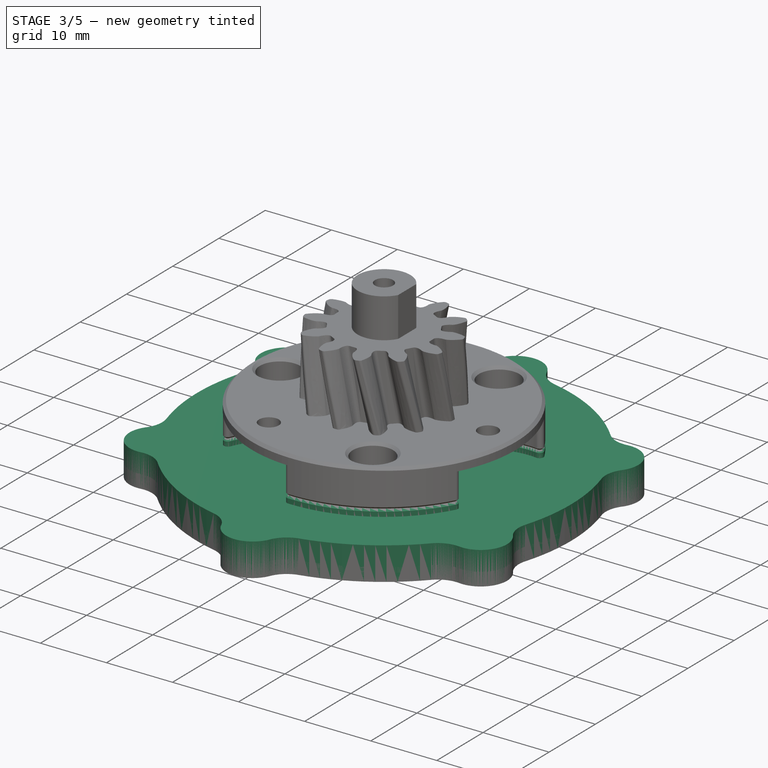
[diagram: stage 3 of 5 — iso view after this stage's code; geometry added in this stage tinted green]
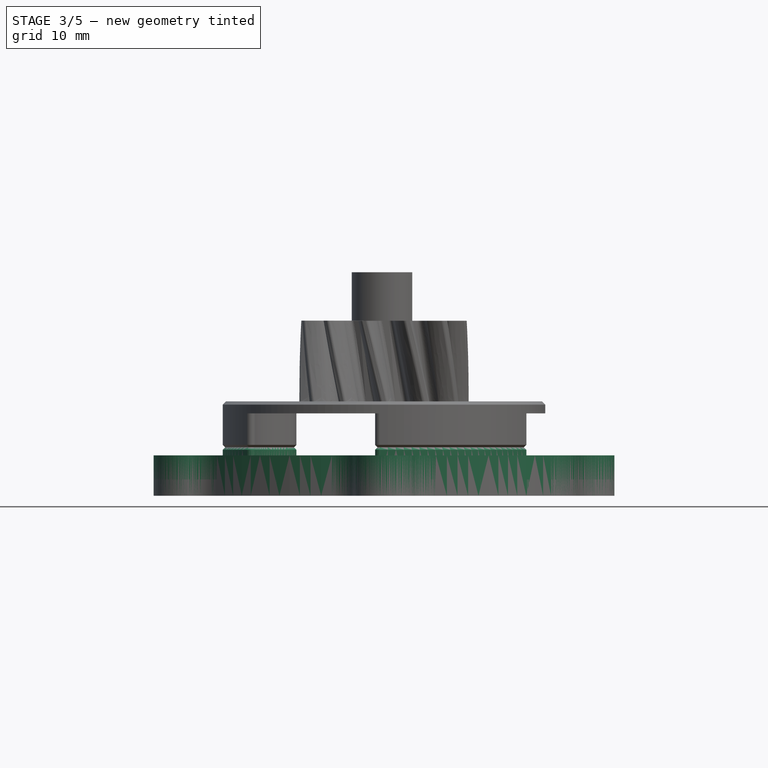
[diagram: stage 3 of 5 — front view after this stage's code; geometry added in this stage tinted green]
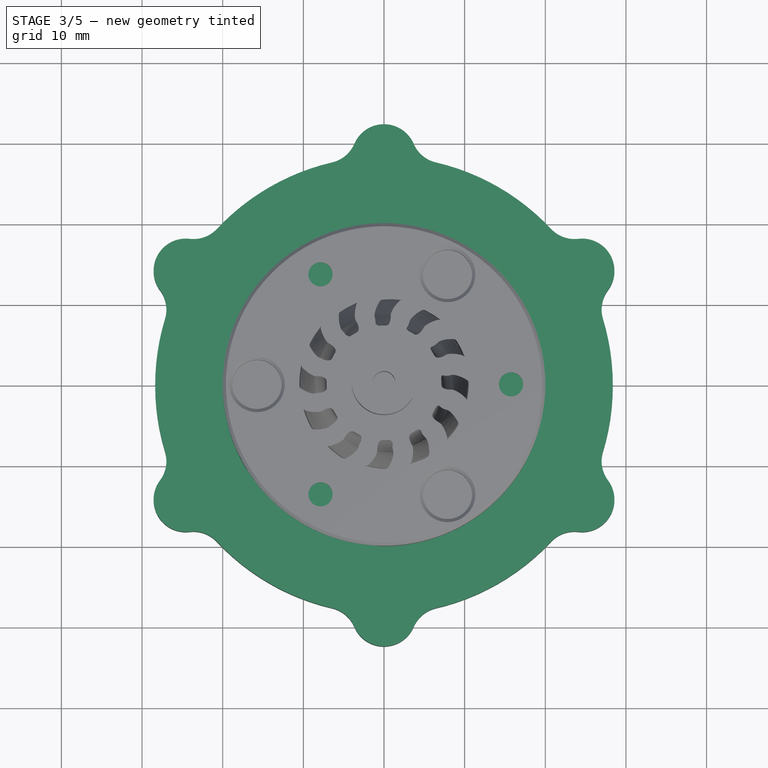
[diagram: stage 3 of 5 — top view after this stage's code; geometry added in this stage tinted green]
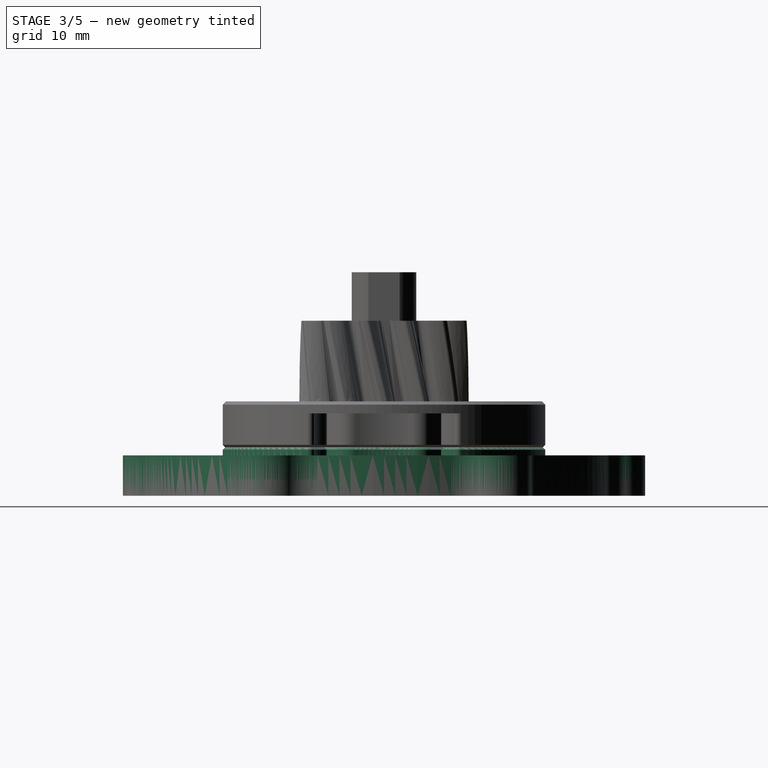
[diagram: stage 3 of 5 — right view after this stage's code; geometry added in this stage tinted green]
FEATURE [PartDesign::Body] Body001  label="PlanetGear_003"
  BaseFeature = -> InvoluteGear001Body
  Group = -> [Clone001]
  Origin = -> Origin003
  Placement = pos=(-7.875,-13.6399,2) rot=(0,0,1;0rad)
  Tip = -> Clone001
  expr: .Placement.Base.x = <<param>>.r_planet * cos(240)
  expr: .Placement.Base.y = <<param>>.r_planet * sin(240)
  expr: .Placement.Base.z = (<<param>>.s_higth - <<param>>.g_hight) / 2
FEATURE [Sketcher::SketchObject] Sketch005
  AttachmentOffset = pos=(0,0,0.3) rot=(0,0,1;0rad)
  FullyConstrained = true
  MapMode = 5
  Placement = pos=(0,0,0.3) rot=(0,0,1;0rad)
  Support = -> [XY_Plane005]
  expr: Constraints[1] = <<param>>.t_sun * <<param>>.modul + 2 * <<param>>.modul + 2
  expr: Constraints[3] = <<param>>.t_ring * <<param>>.modul - 2 * <<param>>.modul - 2
  expr: Constraints[5] = <<param>>.r_planet
  sketch-geometry (8):
    g0: Circle CenterX=0 CenterY=0 CenterZ=0 NormalX=0 NormalY=0 NormalZ=1 AngleXU=0 Radius=11.5
    g1: Circle CenterX=0 CenterY=0 CenterZ=0 NormalX=0 NormalY=0 NormalZ=1 AngleXU=0 Radius=20
    g2: Circle CenterX=0 CenterY=0 CenterZ=0 NormalX=0 NormalY=0 NormalZ=1 AngleXU=0 Radius=15.75
    g3: LineSegment StartX=0 StartY=0 StartZ=0 EndX=-7.875 EndY=13.6399 EndZ=0
    g4: LineSegment StartX=0 StartY=0 StartZ=0 EndX=-7.875 EndY=-13.6399 EndZ=0
    g5: Circle CenterX=-7.875 CenterY=13.6399 CenterZ=0 NormalX=0 NormalY=0 NormalZ=1 AngleXU=0 Radius=1.5
    g6: Circle CenterX=15.75 CenterY=0 CenterZ=0 NormalX=0 NormalY=0 NormalZ=1 AngleXU=0 Radius=1.5
    g7: Circle CenterX=-7.875 CenterY=-13.6399 CenterZ=0 NormalX=0 NormalY=0 NormalZ=1 AngleXU=0 Radius=1.5
  constraints (19):
    c: Coincident(g0,g-1)
    c: Diameter(g0) = 23
    c: Coincident(g1,g0)
    c: Diameter(g1) = 40
    c: Coincident(g2,g0)
    c: Radius(g2) = 15.75
    c: Coincident(g3,g0)
    c: PointOnObject(g3,g2)
    c: Coincident(g4,g0)
    c: PointOnObject(g4,g2)
    c: Angle(g-1,g3) = 2.0944
    c: Angle(g3,g4) = 2.0944
    c: Coincident(g5,g3)
    c: PointOnObject(g6,g2)
    c: PointOnObject(g6,g-1)
    c: Coincident(g7,g4)
    c: Equal(g7,g5)
    c: Equal(g5,g6)
    c: Diameter(g5) = 3
FEATURE [PartDesign::Pad] Pad
  Direction = (0,0,1)
  Length = 1.5
  Length2 = 10
  Profile = -> Sketch005
  ReferenceAxis = -> Sketch005 [N_Axis]
  Type = 0
FEATURE [Sketcher::SketchObject] Sketch006
  AttachmentOffset = pos=(0,0,1.8) rot=(0,0,1;0rad)
  ExternalGeometry = -> [Sketch005]
  FullyConstrained = true
  MapMode = 5
  Placement = pos=(0,0,1.8) rot=(0,0,1;0rad)
  Support = -> [XY_Plane005]
  expr: .AttachmentOffset.Base.z = Pad.Length + Sketch005.AttachmentOffset.Base.z
  expr: Constraints[17] = <<param>>.modul * <<param>>.t_planet + <<param>>.modul * 2 + 1
  sketch-geometry (24):
    g0: ArcOfCircle CenterX=-7.875 CenterY=13.6399 CenterZ=0 NormalX=0 NormalY=0 NormalZ=1 AngleXU=0 Radius=8.75 StartAngle=6.24154 EndAngle=6.94602
    g1: ArcOfCircle CenterX=-7.875 CenterY=13.6399 CenterZ=0 NormalX=0 NormalY=0 NormalZ=1 AngleXU=0 Radius=8.75 StartAngle=3.52596 EndAngle=4.23044
    g2: ArcOfCircle CenterX=15.75 CenterY=0 CenterZ=0 NormalX=0 NormalY=0 NormalZ=1 AngleXU=0 Radius=8.75 StartAngle=1.43156 EndAngle=2.13604
    g3: ArcOfCircle CenterX=15.75 CenterY=0 CenterZ=0 NormalX=0 NormalY=0 NormalZ=1 AngleXU=0 Radius=8.75 StartAngle=4.14714 EndAngle=4.85162
    g4: ArcOfCircle CenterX=-7.875 CenterY=-13.6399 CenterZ=0 NormalX=0 NormalY=0 NormalZ=1 AngleXU=0 Radius=8.75 StartAngle=5.62035 EndAngle=6.32483
    g5: ArcOfCircle CenterX=-7.875 CenterY=-13.6399 CenterZ=0 NormalX=0 NormalY=0 NormalZ=1 AngleXU=0 Radius=8.75 StartAngle=2.05275 EndAngle=2.75723
    g6: ArcOfCircle CenterX=0 CenterY=0 CenterZ=0 NormalX=0 NormalY=0 NormalZ=1 AngleXU=0 Radius=11.5 StartAngle=2.83189 EndAngle=3.45129
    g7: ArcOfCircle CenterX=0 CenterY=0 CenterZ=0 NormalX=0 NormalY=0 NormalZ=1 AngleXU=0 Radius=11.5 StartAngle=0.737499 EndAngle=1.3569
    g8: ArcOfCircle CenterX=0 CenterY=0 CenterZ=0 NormalX=0 NormalY=0 NormalZ=1 AngleXU=0 Radius=11.5 StartAngle=4.92629 EndAngle=5.54569
    g9: ArcOfCircle CenterX=0 CenterY=0 CenterZ=0 NormalX=0 NormalY=0 NormalZ=1 AngleXU=0 Radius=20 StartAngle=0.497574 EndAngle=1.59682
    g10: ArcOfCircle CenterX=0 CenterY=0 CenterZ=0 NormalX=0 NormalY=0 NormalZ=1 AngleXU=0 Radius=20 StartAngle=4.68636 EndAngle=5.78561
    g11: ArcOfCircle CenterX=0 CenterY=0 CenterZ=0 NormalX=0 NormalY=0 NormalZ=1 AngleXU=0 Radius=20 StartAngle=2.59197 EndAngle=3.69122
    g12: ArcOfCircle CenterX=-12.8577 CenterY=4.11442 CenterZ=0 NormalX=0 NormalY=0 NormalZ=1 AngleXU=0 Radius=2 StartAngle=5.97349 EndAngle=7.37203
    g13: ArcOfCircle CenterX=-16.5428 CenterY=10.1339 CenterZ=0 NormalX=0 NormalY=0 NormalZ=1 AngleXU=0 Radius=0.6 StartAngle=0.384367 EndAngle=2.59197
    g14: ArcOfCircle CenterX=-12.8577 CenterY=-4.11442 CenterZ=0 NormalX=0 NormalY=0 NormalZ=1 AngleXU=0 Radius=2 StartAngle=5.19434 EndAngle=6.59288
    g15: ArcOfCircle CenterX=-16.5428 CenterY=-10.1339 CenterZ=0 NormalX=0 NormalY=0 NormalZ=1 AngleXU=0 Radius=0.6 StartAngle=3.69122 EndAngle=5.89882
    g16: ArcOfCircle CenterX=-0.504831 CenterY=-19.3934 CenterZ=0 NormalX=0 NormalY=0 NormalZ=1 AngleXU=0 Radius=0.6 StartAngle=2.47876 EndAngle=4.68636
    g17: ArcOfCircle CenterX=17.0476 CenterY=-9.25952 CenterZ=0 NormalX=0 NormalY=0 NormalZ=1 AngleXU=0 Radius=0.6 StartAngle=5.78561 EndAngle=7.99321
    g18: ArcOfCircle CenterX=9.99206 CenterY=-9.07792 CenterZ=0 NormalX=0 NormalY=0 NormalZ=1 AngleXU=0 Radius=2 StartAngle=1.00555 EndAngle=2.40409
    g19: ArcOfCircle CenterX=2.86568 CenterY=-13.1923 CenterZ=0 NormalX=0 NormalY=0 NormalZ=1 AngleXU=0 Radius=2 StartAngle=1.7847 EndAngle=3.18324
    g20: ArcOfCircle CenterX=9.99206 CenterY=9.07792 CenterZ=0 NormalX=0 NormalY=0 NormalZ=1 AngleXU=0 Radius=2 StartAngle=3.87909 EndAngle=5.27763
    g21: ArcOfCircle CenterX=17.0476 CenterY=9.25952 CenterZ=0 NormalX=0 NormalY=0 NormalZ=1 AngleXU=0 Radius=0.6 StartAngle=4.57316 EndAngle=6.78076
    g22: ArcOfCircle CenterX=-0.504831 CenterY=19.3934 CenterZ=0 NormalX=0 NormalY=0 NormalZ=1 AngleXU=0 Radius=0.6 StartAngle=1.59682 EndAngle=3.80442
    g23: ArcOfCircle CenterX=2.86568 CenterY=13.1923 CenterZ=0 NormalX=0 NormalY=0 NormalZ=1 AngleXU=0 Radius=2 StartAngle=3.09995 EndAngle=4.49849
  constraints (60):
    c: Coincident(g0,g-4)
    c: Coincident(g1,g0)
    c: Coincident(g2,g-3)
    c: Coincident(g3,g2)
    c: Coincident(g4,g-5)
    c: Coincident(g5,g4)
    c: Coincident(g6,g-7)
    c: Coincident(g7,g6)
    c: Coincident(g8,g6)
    c: Coincident(g9,g6)
    c: Coincident(g10,g6)
    c: Coincident(g11,g6)
    c: Equal(g5,g1)
    c: Equal(g1,g0)
    c: Equal(g0,g2)
    c: Equal(g2,g3)
    c: Equal(g3,g4)
    c: Diameter(g2) = 17.5
    c: Tangent(g6,g12) = 1.5708
    c: Tangent(g1,g12) = 1.5708
    c: Tangent(g1,g13) = 1.5708
    c: Tangent(g11,g13) = -1.5708
    c: Tangent(g6,g14) = 1.5708
    c: Tangent(g5,g14) = 1.5708
    c: Tangent(g5,g15) = 1.5708
    c: Tangent(g11,g15) = -1.5708
    c: Tangent(g4,g16) = 1.5708
    c: Tangent(g10,g16) = -1.5708
    c: Tangent(g10,g17) = -1.5708
    c: Tangent(g3,g17) = 1.5708
    c: Tangent(g3,g18) = 1.5708
    c: Tangent(g8,g18) = 1.5708
    c: Tangent(g4,g19) = 1.5708
    c: Tangent(g8,g19) = 1.5708
    c: Tangent(g2,g20) = 1.5708
    c: Tangent(g7,g20) = 1.5708
    c: Tangent(g2,g21) = 1.5708
    c: Tangent(g9,g21) = -1.5708
    c: Tangent(g0,g22) = 1.5708
    c: Tangent(g9,g22) = -1.5708
    c: Tangent(g0,g23) = 1.5708
    c: Tangent(g7,g23) = 1.5708
    c: Equal(g12,g14)
    c: Equal(g14,g19)
    c: Equal(g19,g18)
    c: Equal(g18,g20)
    c: Equal(g20,g23)
    c: Radius(g19) = 2
    c: PointOnObject(g7,g-6)
    c: PointOnObject(g6,g-6)
    c: PointOnObject(g8,g-6)
    c: Equal(g22,g21)
    c: Equal(g21,g17)
    c: Equal(g17,g16)
    c: Equal(g16,g15)
    c: Equal(g15,g13)
    c: Radius(g22) = 0.6
    c: PointOnObject(g9,g-7)
    c: PointOnObject(g10,g-7)
    c: PointOnObject(g11,g-7)
FEATURE [PartDesign::Pad] Pad001
  BaseFeature = -> Pad
  Direction = (0,0,1)
  Length = 4.2
  Length2 = 10
  Profile = -> Sketch006
  ReferenceAxis = -> Sketch006 [N_Axis]
  Type = 0
  expr: Length = <<param>>.s_higth / 2 - Pad.Length / 1mm - Sketch005.AttachmentOffset.Base.z / 1mm
FEATURE [Sketcher::SketchObject] Sketch007
  AttachmentOffset = pos=(0,0,6) rot=(0,0,1;0rad)
  FullyConstrained = true
  MapMode = 5
  Placement = pos=(0,0,6) rot=(0,0,1;0rad)
  Support = -> [XY_Plane005]
  expr: .AttachmentOffset.Base.z = <<param>>.s_higth / 2
  expr: Constraints[16] = <<param>>.r_planet * 2
  sketch-geometry (7):
    g0: Circle CenterX=0 CenterY=0 CenterZ=0 NormalX=0 NormalY=0 NormalZ=1 AngleXU=0 Radius=15.75
    g1: LineSegment StartX=0 StartY=0 StartZ=0 EndX=7.875 EndY=13.6399 EndZ=0
    g2: LineSegment StartX=0 StartY=0 StartZ=0 EndX=7.875 EndY=-13.6399 EndZ=0
    g3: LineSegment StartX=0 StartY=0 StartZ=0 EndX=-15.75 EndY=0 EndZ=0
    g4: Circle CenterX=7.875 CenterY=13.6399 CenterZ=0 NormalX=0 NormalY=0 NormalZ=1 AngleXU=0 Radius=2.125
    g5: Circle CenterX=-15.75 CenterY=0 CenterZ=0 NormalX=0 NormalY=0 NormalZ=1 AngleXU=0 Radius=2.125
    g6: Circle CenterX=7.875 CenterY=-13.6399 CenterZ=0 NormalX=0 NormalY=0 NormalZ=1 AngleXU=0 Radius=2.125
  constraints (17):
    c: Coincident(g0,g-1)
    c: Coincident(g1,g0)
    c: PointOnObject(g1,g0)
    c: Coincident(g2,g0)
    c: PointOnObject(g2,g0)
    c: Coincident(g3,g0)
    c: PointOnObject(g3,g0)
    c: PointOnObject(g3,g-1)
    c: Angle(g2,g1) = 2.0944
    c: Angle(g-1,g1) = 1.0472
    c: Coincident(g4,g1)
    c: Coincident(g5,g3)
    c: Coincident(g6,g2)
    c: Equal(g6,g5)
    c: Equal(g5,g4)
    c: Diameter(g4) = 4.25
    c: Diameter(g0) = 31.5
FEATURE [PartDesign::Pocket] Pocket002
  BaseFeature = -> Pad001
  Direction = (0,0,-1)
  Length = 5
  Length2 = 5
  Profile = -> Sketch007
  ReferenceAxis = -> Sketch007 [N_Axis]
  Type = 1
FEATURE [Sketcher::SketchObject] Sketch011
  FullyConstrained = true
  MapMode = 5
  Support = -> [XY_Plane008]
  expr: Constraints[18] = InternalInvoluteGear.df + 8mm
  sketch-geometry (32):
    g0: LineSegment StartX=24.5735 StartY=14.1875 StartZ=0 EndX=0 EndY=28.375 EndZ=0
    g1: LineSegment StartX=0 StartY=28.375 StartZ=0 EndX=-24.5735 EndY=14.1875 EndZ=0
    g2: LineSegment StartX=-24.5735 StartY=14.1875 StartZ=0 EndX=-24.5735 EndY=-14.1875 EndZ=0
    g3: LineSegment StartX=-24.5735 StartY=-14.1875 StartZ=0 EndX=0 EndY=-28.375 EndZ=0
    g4: LineSegment StartX=0 StartY=-28.375 StartZ=0 EndX=24.5735 EndY=-14.1875 EndZ=0
    g5: LineSegment StartX=24.5735 StartY=-14.1875 StartZ=0 EndX=24.5735 EndY=14.1875 EndZ=0
    g6: Circle CenterX=0 CenterY=0 CenterZ=0 NormalX=0 NormalY=0 NormalZ=1 AngleXU=0 Radius=28.375
    g7: ArcOfCircle CenterX=0 CenterY=28.375 CenterZ=0 NormalX=0 NormalY=0 NormalZ=1 AngleXU=0 Radius=4 StartAngle=0.405277 EndAngle=2.73632
    g8: ArcOfCircle CenterX=24.5735 CenterY=14.1875 CenterZ=0 NormalX=0 NormalY=0 NormalZ=1 AngleXU=0 Radius=4 StartAngle=5.64126 EndAngle=7.9723
    g9: ArcOfCircle CenterX=-24.5735 CenterY=14.1875 CenterZ=0 NormalX=0 NormalY=0 NormalZ=1 AngleXU=0 Radius=4 StartAngle=1.45247 EndAngle=3.78351
    g10: ArcOfCircle CenterX=-24.5735 CenterY=-14.1875 CenterZ=0 NormalX=0 NormalY=0 NormalZ=1 AngleXU=0 Radius=4 StartAngle=2.49967 EndAngle=4.83071
    g11: ArcOfCircle CenterX=0 CenterY=-28.375 CenterZ=0 NormalX=0 NormalY=0 NormalZ=1 AngleXU=0 Radius=4 StartAngle=3.54687 EndAngle=5.87791
    g12: ArcOfCircle CenterX=24.5735 CenterY=-14.1875 CenterZ=0 NormalX=0 NormalY=0 NormalZ=1 AngleXU=0 Radius=4 StartAngle=4.59407 EndAngle=6.92511
    g13: ArcOfCircle CenterX=0 CenterY=0 CenterZ=0 NormalX=0 NormalY=0 NormalZ=1 AngleXU=0 Radius=28.375 StartAngle=0.752684 EndAngle=1.34171
    g14: ArcOfCircle CenterX=0 CenterY=0 CenterZ=0 NormalX=0 NormalY=0 NormalZ=1 AngleXU=0 Radius=28.375 StartAngle=5.98867 EndAngle=6.5777
    g15: ArcOfCircle CenterX=0 CenterY=0 CenterZ=0 NormalX=0 NormalY=0 NormalZ=1 AngleXU=0 Radius=28.375 StartAngle=1.79988 EndAngle=2.38891
    g16: ArcOfCircle CenterX=0 CenterY=0 CenterZ=0 NormalX=0 NormalY=0 NormalZ=1 AngleXU=0 Radius=28.375 StartAngle=2.84708 EndAngle=3.43611
    g17: ArcOfCircle CenterX=0 CenterY=0 CenterZ=0 NormalX=0 NormalY=0 NormalZ=1 AngleXU=0 Radius=28.375 StartAngle=3.89428 EndAngle=4.4833
    g18: ArcOfCircle CenterX=0 CenterY=0 CenterZ=0 NormalX=0 NormalY=0 NormalZ=1 AngleXU=0 Radius=28.375 StartAngle=4.94147 EndAngle=5.5305
    g19: ArcOfCircle CenterX=23.6291 CenterY=-22.1316 CenterZ=0 NormalX=0 NormalY=0 NormalZ=1 AngleXU=0 Radius=4 StartAngle=1.45247 EndAngle=2.38891
    g20: ArcOfCircle CenterX=30.981 CenterY=-9.39762 CenterZ=0 NormalX=0 NormalY=0 NormalZ=1 AngleXU=0 Radius=4 StartAngle=2.84708 EndAngle=3.78351
    g21: ArcOfCircle CenterX=30.981 CenterY=9.39762 CenterZ=0 NormalX=0 NormalY=0 NormalZ=1 AngleXU=0 Radius=4 StartAngle=2.49967 EndAngle=3.43611
    g22: ArcOfCircle CenterX=23.6291 CenterY=22.1316 CenterZ=0 NormalX=0 NormalY=0 NormalZ=1 AngleXU=0 Radius=4 StartAngle=3.89428 EndAngle=4.83071
    g23: ArcOfCircle CenterX=7.35195 CenterY=31.5292 CenterZ=0 NormalX=0 NormalY=0 NormalZ=1 AngleXU=0 Radius=4 StartAngle=3.54687 EndAngle=4.4833
    g24: ArcOfCircle CenterX=-7.35195 CenterY=31.5292 CenterZ=0 NormalX=0 NormalY=0 NormalZ=1 AngleXU=0 Radius=4 StartAngle=4.94147 EndAngle=5.87791
    g25: ArcOfCircle CenterX=-23.6291 CenterY=22.1316 CenterZ=0 NormalX=0 NormalY=0 NormalZ=1 AngleXU=0 Radius=4 StartAngle=4.59407 EndAngle=5.5305
    g26: ArcOfCircle CenterX=-30.981 CenterY=9.39762 CenterZ=0 NormalX=0 NormalY=0 NormalZ=1 AngleXU=0 Radius=4 StartAngle=5.98867 EndAngle=6.92511
    g27: ArcOfCircle CenterX=-30.981 CenterY=-9.39762 CenterZ=0 NormalX=0 NormalY=0 NormalZ=1 AngleXU=0 Radius=4 StartAngle=5.64126 EndAngle=6.5777
    g28: ArcOfCircle CenterX=-23.6291 CenterY=-22.1316 CenterZ=0 NormalX=0 NormalY=0 NormalZ=1 AngleXU=0 Radius=4 StartAngle=0.752684 EndAngle=1.68912
    g29: ArcOfCircle CenterX=-7.35195 CenterY=-31.5292 CenterZ=0 NormalX=0 NormalY=0 NormalZ=1 AngleXU=0 Radius=4 StartAngle=0.405277 EndAngle=1.34171
    g30: ArcOfCircle CenterX=7.35195 CenterY=-31.5292 CenterZ=0 NormalX=0 NormalY=0 NormalZ=1 AngleXU=0 Radius=4 StartAngle=1.79988 EndAngle=2.73632
    g31: Circle CenterX=0 CenterY=0 CenterZ=0 NormalX=0 NormalY=0 NormalZ=1 AngleXU=0 Radius=5.075
  constraints (78):
    c: Coincident(g0,g1)
    c: Coincident(g1,g2)
    c: Coincident(g2,g3)
    c: Coincident(g3,g4)
    c: Coincident(g4,g5)
    c: Coincident(g5,g0)
    c: Equal(g0, g1-g5) x5
    c: PointOnObject(g0,g6)
    c: PointOnObject(g1,g6)
    c: PointOnObject(g2,g6)
    c: PointOnObject(g3,g6)
    c: PointOnObject(g4,g6)
    c: PointOnObject(g5,g6)
    c: PointOnObject(g0,g-2)
    c: Diameter(g6) = 56.75
    c: Coincident(g6,g-1)
    c: Coincident(g7,g0)
    c: Coincident(g8,g0)
    c: Coincident(g9,g1)
    c: Coincident(g10,g2)
    c: Coincident(g11,g3)
    c: Coincident(g12,g4)
    c: Coincident(g13,g6)
    c: Coincident(g14,g13)
    c: Coincident(g15,g13)
    c: Coincident(g16,g13)
    c: Coincident(g17,g13)
    c: Coincident(g18,g13)
    c: Equal(g18,g14)
    c: Equal(g14,g13)
    c: Equal(g13,g15)
    c: Equal(g15,g16)
    c: Equal(g16,g17)
    c: Equal(g9,g7)
    c: Equal(g7,g8)
    c: Equal(g8,g12)
    c: Equal(g12,g11)
    c: Equal(g11,g10)
    c: Radius(g8) = 4
    c: Tangent(g22,g8) = 1.5708
    c: Tangent(g21,g8) = 1.5708
    c: Tangent(g21,g14) = 1.5708
    c: Tangent(g20,g14) = 1.5708
    c: Tangent(g20,g12) = 1.5708
    c: Tangent(g19,g12) = 1.5708
    c: Tangent(g19,g18) = 1.5708
    c: Tangent(g30,g18) = 1.5708
    c: Tangent(g30,g11) = 1.5708
    c: Tangent(g29,g11) = 1.5708
    c: Tangent(g29,g17) = 1.5708
    c: Tangent(g28,g17) = 1.5708
    c: Tangent(g28,g10) = 1.5708
    c: Tangent(g27,g10) = 1.5708
    c: Tangent(g27,g16) = 1.5708
    c: Tangent(g22,g13) = 1.5708
    c: Tangent(g23,g13) = 1.5708
    c: Tangent(g23,g7) = 1.5708
    c: Tangent(g24,g7) = 1.5708
    c: Tangent(g24,g15) = 1.5708
    c: Tangent(g25,g15) = 1.5708
    c: Tangent(g25,g9) = 1.5708
    c: Tangent(g26,g9) = 1.5708
    c: Tangent(g26,g16) = 1.5708
    c: Equal(g23,g22)
    c: Equal(g22,g21)
    c: Equal(g21,g20)
    c: Equal(g20,g19)
    c: Equal(g19,g30)
    c: Equal(g30,g29)
    c: Equal(g29,g28)
    c: Equal(g28,g27)
    c: Equal(g27,g26)
    c: Equal(g26,g25)
    c: Equal(g25,g24)
    c: Equal(g18,g6)
    c: Equal(g8,g22)
    c: Coincident(g31,g13)
    c: Diameter(g31) = 10.15
FEATURE [PartDesign::Pad] Pad004
  Direction = (0,0,1)
  Length = 5
  Length2 = 10
  Profile = -> Sketch011
  ReferenceAxis = -> Sketch011 [N_Axis]
  Type = 0
FEATURE [Sketcher::SketchObject] Sketch014
  AttachmentOffset = pos=(0,0,5) rot=(0,0,1;0rad)
  FullyConstrained = true
  MapMode = 5
  Placement = pos=(0,0,5) rot=(0,0,1;0rad)
  Support = -> [XY_Plane008]
  expr: .AttachmentOffset.Base.z = Pad004.Length
  sketch-geometry (5):
    g0: ArcOfCircle CenterX=0 CenterY=8 CenterZ=0 NormalX=0 NormalY=0 NormalZ=1 AngleXU=0 Radius=3.05 StartAngle=2e-16 EndAngle=3.14159
    g1: ArcOfCircle CenterX=0 CenterY=-8 CenterZ=0 NormalX=0 NormalY=0 NormalZ=1 AngleXU=0 Radius=3.05 StartAngle=3.14159 EndAngle=6.28319
    g2: LineSegment StartX=-3.05 StartY=8 StartZ=0 EndX=-3.05 EndY=-8 EndZ=0
    g3: LineSegment StartX=3.05 StartY=-8 StartZ=0 EndX=3.05 EndY=8 EndZ=0
    g4: Circle CenterX=0 CenterY=0 CenterZ=0 NormalX=0 NormalY=0 NormalZ=1 AngleXU=0 Radius=8
  constraints (12):
    c: Tangent(g0,g2) = -1.5708
    c: Tangent(g2,g1) = -1.5708
    c: Tangent(g1,g3) = -1.5708
    c: Tangent(g3,g0) = -1.5708
    c: Equal(g0,g1)
    c: Coincident(g4,g-1)
    c: Diameter(g4) = 16
    c: PointOnObject(g0,g4)
    c: PointOnObject(g1,g4)
    c: Vertical(g3)
    c: PointOnObject(g0,g-2)
    c: Radius(g0) = 3.05
FEATURE [Sketcher::SketchObject] Sketch015
  AttachmentOffset = pos=(0,0,3) rot=(0,0,1;0rad)
  FullyConstrained = true
  MapMode = 5
  Placement = pos=(0,0,3) rot=(0,0,1;0rad)
  Support = -> [XY_Plane008]
  expr: .AttachmentOffset.Base.z = Pad004.Length - Pocket005.Length
  sketch-geometry (3):
    g0: Circle CenterX=0 CenterY=0 CenterZ=0 NormalX=0 NormalY=0 NormalZ=1 AngleXU=0 Radius=8
    g1: Circle CenterX=0 CenterY=8 CenterZ=0 NormalX=0 NormalY=0 NormalZ=1 AngleXU=0 Radius=1.4
    g2: Circle CenterX=0 CenterY=-8 CenterZ=0 NormalX=0 NormalY=0 NormalZ=1 AngleXU=0 Radius=1.4
  constraints (8):
    c: Coincident(g0,g-1)
    c: Diameter(g0) = 16
    c: PointOnObject(g1,g0)
    c: PointOnObject(g2,g0)
    c: PointOnObject(g2,g-2)
    c: PointOnObject(g1,g-2)
    c: Equal(g1,g2)
    c: Diameter(g1) = 2.8
FEATURE [PartDesign::Pocket] Pocket005
  BaseFeature = -> Pad004
  Direction = (0,0,-1)
  Length = 2
  Length2 = 5
  Profile = -> Sketch014
  ReferenceAxis = -> Sketch014 [N_Axis]
  Type = 0
FEATURE [PartDesign::Chamfer] Chamfer006
  Angle = 45
  Base = -> Pocket002 [Face30,Face23,Face36]
  BaseFeature = -> Pocket002
  ChamferType = 0
  FlipDirection = false
  Size = 0.3
  Size2 = 1
  SupportTransform = false
  UseAllEdges = false
FEATURE [PartDesign::Chamfer] Chamfer007
  Angle = 45
  Base = -> Chamfer006 [Edge11]
  BaseFeature = -> Chamfer006
  ChamferType = 0
  FlipDirection = false
  Size = 0.4
  Size2 = 1
  SupportTransform = false
  UseAllEdges = false
FEATURE [PartDesign::Fillet] Fillet001
  Base = -> Hole004 [Edge53]
  BaseFeature = -> Hole004
  Radius = 1
  SupportTransform = false
  UseAllEdges = false
FEATURE [PartDesign::Chamfer] Chamfer008
  Angle = 45
  Base = -> Fillet001 [Edge68,Edge35]
  BaseFeature = -> Fillet001
  ChamferType = 0
  FlipDirection = false
  Size = 0.4
  Size2 = 1
  SupportTransform = false
  UseAllEdges = false
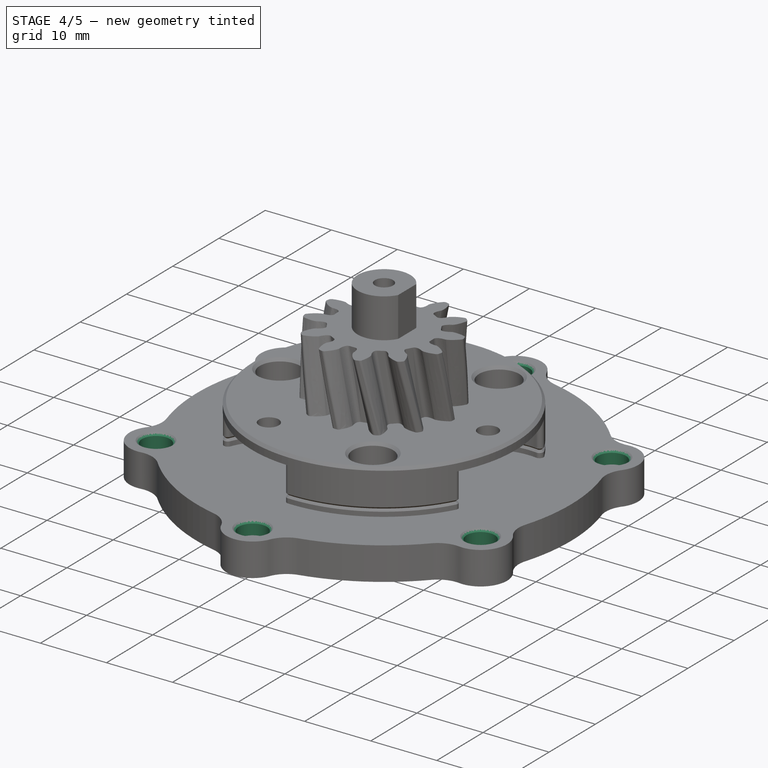
[diagram: stage 4 of 5 — iso view after this stage's code; geometry added in this stage tinted green]
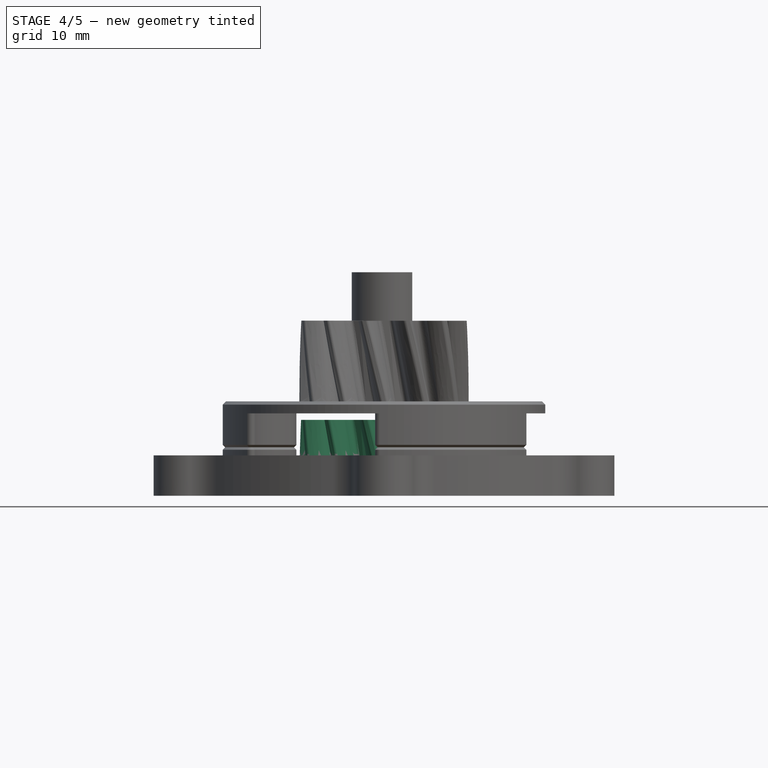
[diagram: stage 4 of 5 — front view after this stage's code; geometry added in this stage tinted green]
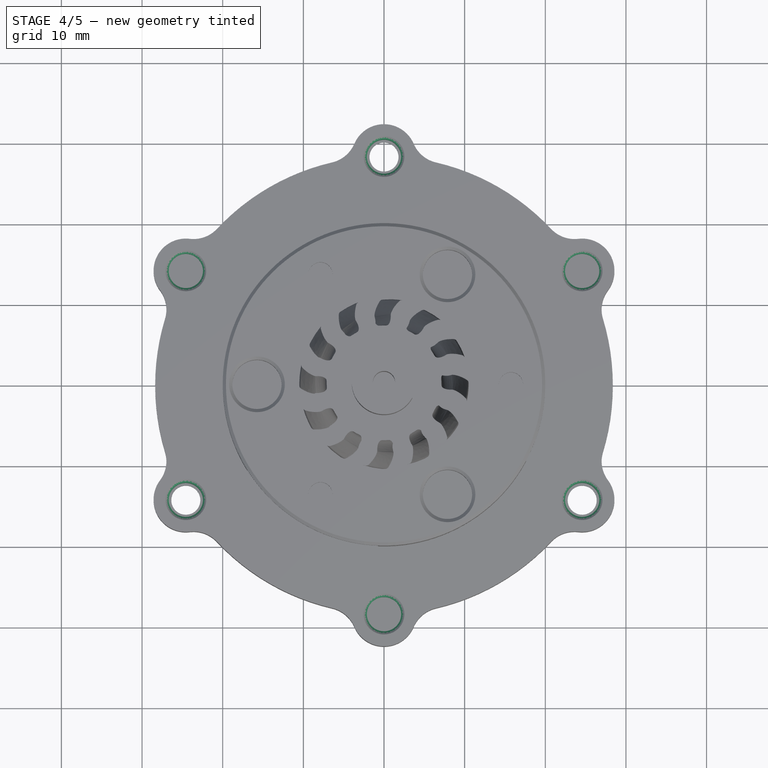
[diagram: stage 4 of 5 — top view after this stage's code; geometry added in this stage tinted green]
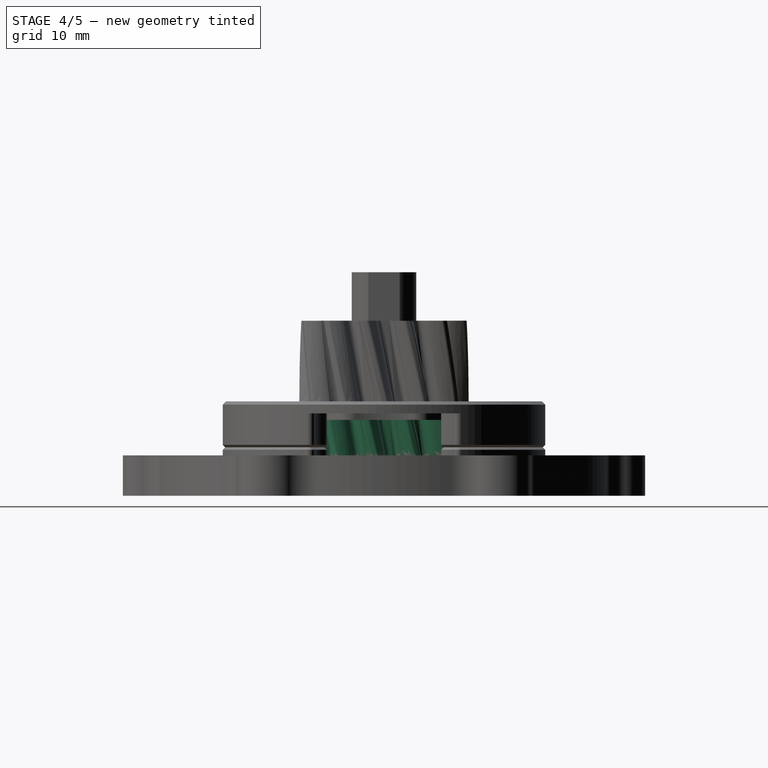
[diagram: stage 4 of 5 — right view after this stage's code; geometry added in this stage tinted green]
FEATURE [Spreadsheet::Sheet] Spreadsheet  label="param"
  cells = A1=Gear Hight; B1(g_hight)=8; A2=Step Hight; B2(s_higth)=12; A3=Modul; B3(modul)=1.5; A4=Sun Teeth; B4(t_sun)=12; A5=Planet Teeth; B5(t_planet)=9; A6=Ring Teeth; B6(t_ring)=30; A8=head_fillet; B8(head_fillet)=0.3; A9=root_fillet; B9(root_fillet)=0.3; A10=undercut; B10(undercut)=true; A12=beta; B12(beta)=12; A13=backlash; B13(backlash)=0.1; A17=R Planet; B17(r_planet)==modul / 2 * (t_sun + t_planet)
FEATURE [PartDesign::FeaturePython] InvoluteGear  label="InvoluteGear.Sun"  # WARN: FeaturePython — macro-defined, semantics opaque (R4)
  AttacherType = Attacher::AttachEngine3D
  MapMode = 5
  angular_backlash = 0.63662
  backlash = 0.1
  beta = -12
  clearance = 0.25
  da = 21
  df = 14.25
  double_helix = false
  dw = 18
  head = 0
  head_fillet = 0.3
  height = 9.4
  module = 1.5
  numpoints = 6
  pressure_angle = 20
  properties_from_tool = false
  reversed_backlash = false
  root_fillet = 0
  shift = 0
  simple = false
  teeth = 12
  transverse_pitch = 4.71239
  traverse_module = 1.5
  undercut = true
  version = 0.0.4
  expr: angular_backlash = backlash / dw * 360° / pi
  expr: backlash = <<param>>.backlash
  expr: beta = -<<param>>.beta
  expr: head_fillet = <<param>>.head_fillet
  expr: height = <<param>>.g_hight + (<<param>>.s_higth - <<param>>.g_hight) / 2 - 0.6
  expr: module = <<param>>.modul
  expr: teeth = <<param>>.t_sun
FEATURE [Sketcher::SketchObject] Sketch012
  AttachmentOffset = pos=(0,0,10) rot=(0,0,1;0rad)
  FullyConstrained = true
  MapMode = 5
  Placement = pos=(0,0,10) rot=(0,0,1;0rad)
  Support = -> [XY_Plane004]
  expr: .AttachmentOffset.Base.z = <<param>>.g_hight + (<<param>>.s_higth - <<param>>.g_hight) / 2
  sketch-geometry (1):
    g0: Circle CenterX=0 CenterY=0 CenterZ=0 NormalX=0 NormalY=0 NormalZ=1 AngleXU=0 Radius=1.3
  constraints (2):
    c: Coincident(g0,g-1)
    c: Diameter(g0) = 2.6
FEATURE [PartDesign::Pocket] Pocket003
  BaseFeature = -> InvoluteGear
  Direction = (0,0,-1)
  Length = 5
  Length2 = 5
  Profile = -> Sketch012
  ReferenceAxis = -> Sketch012 [N_Axis]
  Type = 1
FEATURE [PartDesign::Hole] Hole003
  BaseFeature = -> Pocket005
  CustomThreadClearance = 0
  Depth = 174.716
  DepthType = 1
  Diameter = 2.7
  DrillForDepth = false
  DrillPoint = 1
  DrillPointAngle = 118
  HoleCutCountersinkAngle = 90
  HoleCutCustomValues = false
  HoleCutDepth = 0
  HoleCutDiameter = 6.1
  HoleCutType = 2
  ModelThread = false
  Profile = -> Sketch015
  Tapered = false
  TaperedAngle = 90
  ThreadClass = 0
  ThreadDepth = 174.716
  ThreadDepthType = 0
  ThreadDirection = 0
  ThreadFit = 1
  ThreadSize = 8
  ThreadType = 1
  Threaded = false
  UseCustomThreadClearance = false
FEATURE [Sketcher::SketchObject] Sketch016
  FullyConstrained = true
  MapMode = 5
  Support = -> [XY_Plane008]
  expr: Constraints[13] = Sketch.Constraints[18]
  sketch-geometry (13):
    g0: LineSegment StartX=24.5735 StartY=14.1875 StartZ=0 EndX=0 EndY=28.375 EndZ=0
    g1: LineSegment StartX=0 StartY=28.375 StartZ=0 EndX=-24.5735 EndY=14.1875 EndZ=0
    g2: LineSegment StartX=-24.5735 StartY=14.1875 StartZ=0 EndX=-24.5735 EndY=-14.1875 EndZ=0
    g3: LineSegment StartX=-24.5735 StartY=-14.1875 StartZ=0 EndX=0 EndY=-28.375 EndZ=0
    g4: LineSegment StartX=0 StartY=-28.375 StartZ=0 EndX=24.5735 EndY=-14.1875 EndZ=0
    g5: LineSegment StartX=24.5735 StartY=-14.1875 StartZ=0 EndX=24.5735 EndY=14.1875 EndZ=0
    g6: Circle CenterX=0 CenterY=0 CenterZ=0 NormalX=0 NormalY=0 NormalZ=1 AngleXU=0 Radius=28.375
    g7: Circle CenterX=0 CenterY=28.375 CenterZ=0 NormalX=0 NormalY=0 NormalZ=1 AngleXU=0 Radius=2.125
    g8: Circle CenterX=24.5735 CenterY=-14.1875 CenterZ=0 NormalX=0 NormalY=0 NormalZ=1 AngleXU=0 Radius=2.125
    g9: Circle CenterX=-24.5735 CenterY=-14.1875 CenterZ=0 NormalX=0 NormalY=0 NormalZ=1 AngleXU=0 Radius=2.125
    g10: Circle CenterX=24.5735 CenterY=14.1875 CenterZ=0 NormalX=0 NormalY=0 NormalZ=1 AngleXU=0 Radius=2.125
    g11: Circle CenterX=0 CenterY=-28.375 CenterZ=0 NormalX=0 NormalY=0 NormalZ=1 AngleXU=0 Radius=2.125
    g12: Circle CenterX=-24.5735 CenterY=14.1875 CenterZ=0 NormalX=0 NormalY=0 NormalZ=1 AngleXU=0 Radius=2.125
  constraints (32):
    c: Coincident(g0,g1)
    c: Coincident(g1,g2)
    c: Coincident(g2,g3)
    c: Coincident(g3,g4)
    c: Coincident(g4,g5)
    c: Coincident(g5,g0)
    c: PointOnObject(g0,g6)
    c: PointOnObject(g1,g6)
    c: PointOnObject(g2,g6)
    c: PointOnObject(g3,g6)
    c: PointOnObject(g4,g6)
    c: PointOnObject(g5,g6)
    c: PointOnObject(g0,g-2)
    c: Diameter(g6) = 56.75
    c: Coincident(g6,g-1)
    c: Coincident(g7,g0)
    c: Coincident(g8,g4)
    c: Coincident(g9,g2)
    c: Equal(g7,g8)
    c: Equal(g8,g9)
    c: Diameter(g7) = 4.25
    c: Coincident(g10,g0)
    c: Coincident(g11,g3)
    c: Coincident(g12,g1)
    c: Equal(g7,g10)
    c: Equal(g8,g11)
    c: Equal(g9,g12)
    c: Equal(g1,g0)
    c: Equal(g0,g5)
    c: Equal(g5,g4)
    c: Equal(g4,g3)
    c: Equal(g3,g2)
FEATURE [PartDesign::Pocket] Pocket006
  BaseFeature = -> Hole003
  Direction = (0,0,-1)
  Length = 5
  Length2 = 5
  Profile = -> Sketch016
  ReferenceAxis = -> Sketch016 [N_Axis]
  Reversed = true
  Type = 1
FEATURE [PartDesign::Fillet] Fillet
  Base = -> Pocket006 [Edge31]
  BaseFeature = -> Pocket006
  Radius = 1
  SupportTransform = false
  UseAllEdges = false
FEATURE [PartDesign::Plane] DatumPlane
  AttachmentOffset = pos=(0,0,0) rot=(0,1,0;0.148353rad)
  Length = 67.5035
  MapMode = 5
  Placement = pos=(0,0,0) rot=(0.994523,0.073906,0.073906;1.57629rad)
  ResizeMode = 0
  Support = -> [XZ_Plane004]
  Width = 60.6622
FEATURE [Sketcher::SketchObject] Sketch017
  FullyConstrained = true
  MapMode = 5
  Placement = pos=(0,0,0) rot=(0.994523,0.073906,0.073906;1.57629rad)
  Support = -> [DatumPlane]
  expr: Constraints[1] = (<<param>>.g_hight + (<<param>>.s_higth - <<param>>.g_hight) / 2) / 2
  sketch-geometry (1):
    g0: Circle CenterX=0 CenterY=5 CenterZ=0 NormalX=0 NormalY=0 NormalZ=1 AngleXU=0 Radius=1.25
  constraints (3):
    c: PointOnObject(g0,g-2)
    c: DistanceY(g-1,g0) = 5
    c: Diameter(g0) = 2.5
FEATURE [PartDesign::Pocket] Pocket007
  BaseFeature = -> Pocket003
  Direction = (-0.147809,0.989016,2e-16)
  Length = 5
  Length2 = 5
  Midplane = true
  Profile = -> Sketch017
  ReferenceAxis = -> Sketch017 [N_Axis]
  Type = 1
FEATURE [Sketcher::SketchObject] Sketch018
  AttachmentOffset = pos=(0,0,7.125) rot=(0,0,1;0rad)
  FullyConstrained = true
  MapMode = 5
  Placement = pos=(1.05314,-7.04674,-1.2e-15) rot=(0.994523,0.073906,0.073906;1.57629rad)
  Support = -> [DatumPlane]
  expr: .AttachmentOffset.Base.z = InvoluteGear.df / 2
  expr: Constraints[1] = (<<param>>.g_hight + (<<param>>.s_higth - <<param>>.g_hight) / 2) / 2
  sketch-geometry (1):
    g0: Circle CenterX=0 CenterY=5 CenterZ=0 NormalX=0 NormalY=0 NormalZ=1 AngleXU=0 Radius=1.65
  constraints (3):
    c: PointOnObject(g0,g-2)
    c: DistanceY(g-1,g0) = 5
    c: Diameter(g0) = 3.3
FEATURE [PartDesign::Pocket] Pocket008
  BaseFeature = -> Pocket007
  Direction = (-0.147809,0.989016,2e-16)
  Length = 5
  Length2 = 5
  Profile = -> Sketch018
  ReferenceAxis = -> Sketch018 [N_Axis]
  Reversed = true
  Type = 1
FEATURE [PartDesign::Body] Body002  label="SunGear_Motor"
  Group = -> [InvoluteGear,Sketch012,Pocket003,DatumPlane,Sketch017,Pocket007,Sketch018,Pocket008,Sketch019,Pocket009]
  Origin = -> Origin004
  Placement = pos=(0,0,0.3) rot=(0,0,1;0rad)
  Tip = -> Pocket009
FEATURE [PartDesign::Chamfer] Chamfer
  Angle = 45
  Base = -> Fillet [Edge81,Edge83,Edge79,Edge77,Edge76,Edge80,Edge84,Edge33,Edge36,Edge47,Edge46,Edge35,Edge34]
  BaseFeature = -> Fillet
  ChamferType = 0
  FlipDirection = false
  Size = 0.4
  Size2 = 1
  SupportTransform = false
  UseAllEdges = false
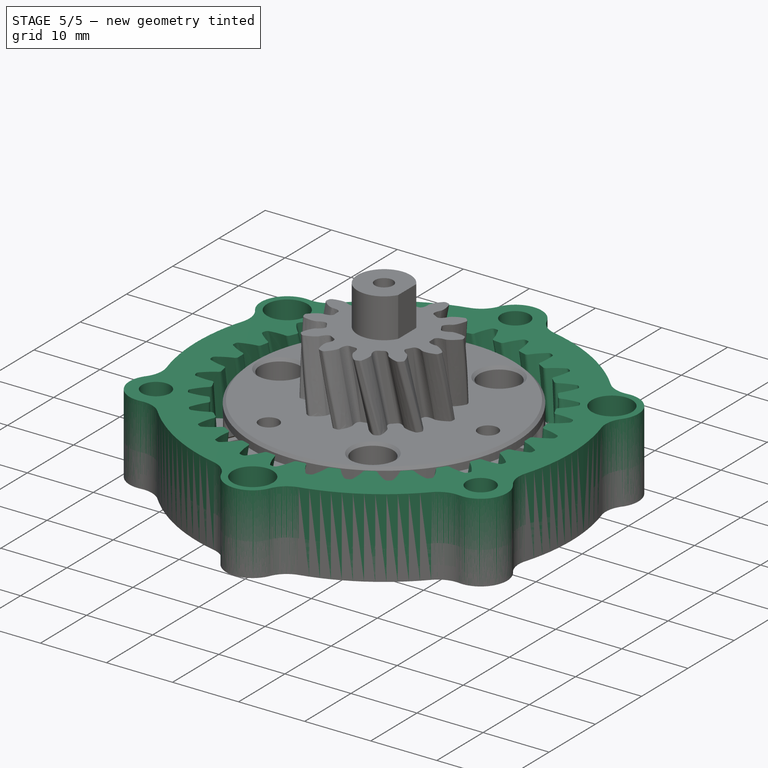
[diagram: stage 5 of 5 — iso view after this stage's code; geometry added in this stage tinted green]
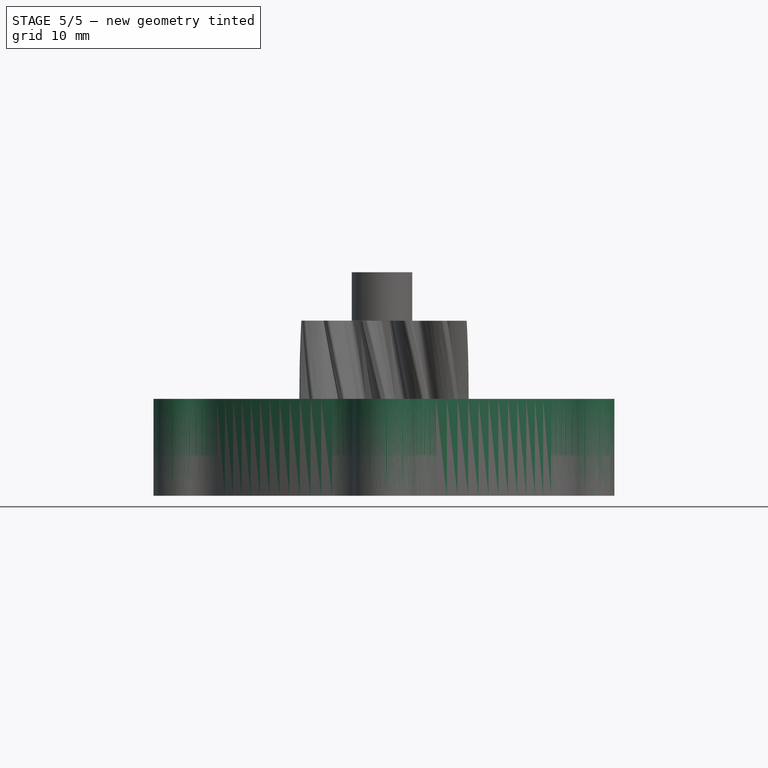
[diagram: stage 5 of 5 — front view after this stage's code; geometry added in this stage tinted green]
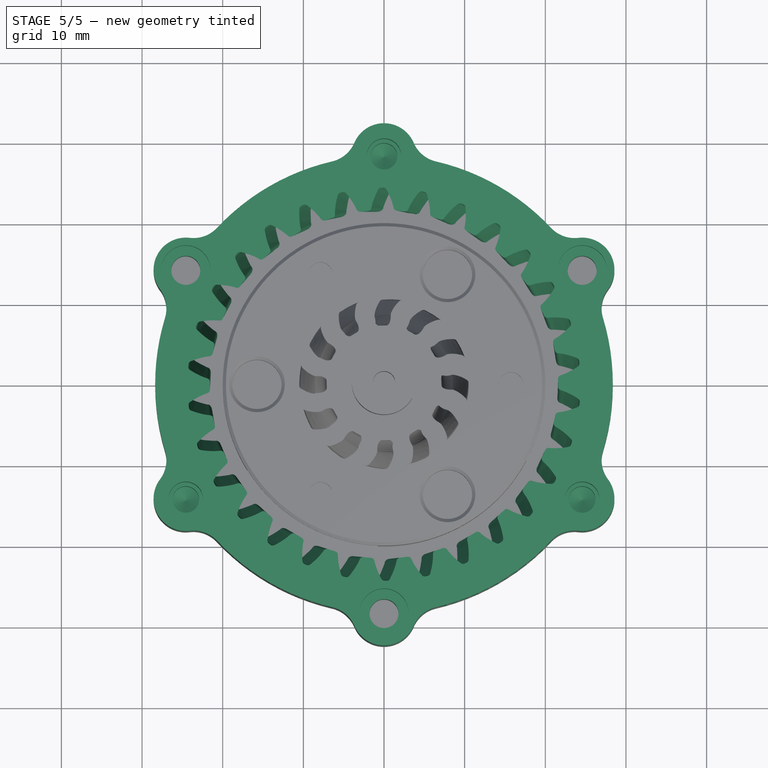
[diagram: stage 5 of 5 — top view after this stage's code; geometry added in this stage tinted green]
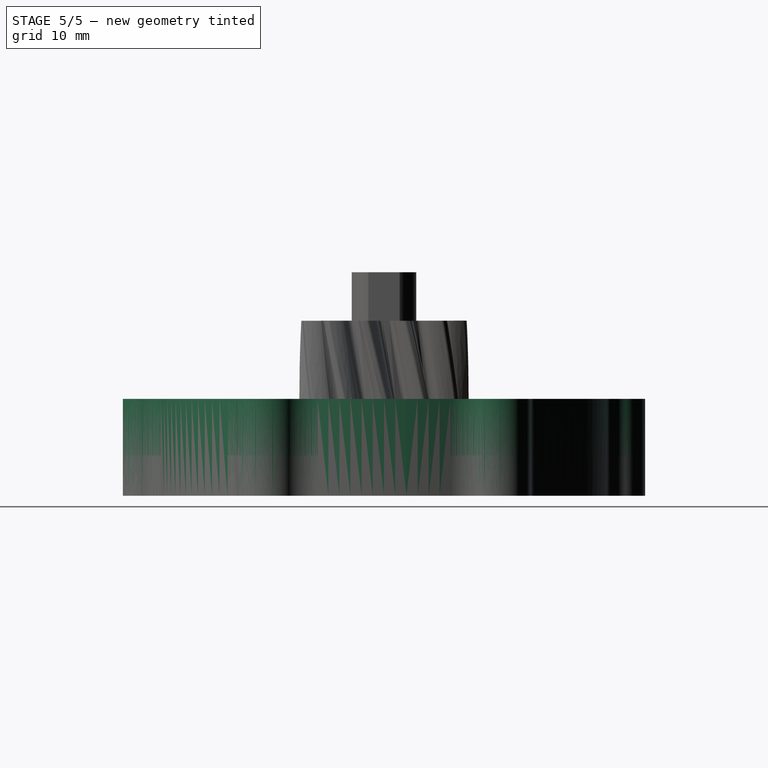
[diagram: stage 5 of 5 — right view after this stage's code; geometry added in this stage tinted green]
FEATURE [PartDesign::FeaturePython] InvoluteGear001  label="InvoluteGear.Planet"  # WARN: FeaturePython — macro-defined, semantics opaque (R4)
  AttacherType = Attacher::AttachEngine3D
  MapMode = 5
  angular_backlash = 0.848826
  backlash = 0.1
  beta = 12
  clearance = 0.25
  da = 16.5
  df = 9.75
  double_helix = false
  dw = 13.5
  head = 0
  head_fillet = 0.3
  height = 8
  module = 1.5
  numpoints = 6
  pressure_angle = 20
  properties_from_tool = false
  reversed_backlash = false
  root_fillet = 0
  shift = 0
  simple = false
  teeth = 9
  transverse_pitch = 4.71239
  traverse_module = 1.5
  undercut = true
  version = 0.0.4
  expr: angular_backlash = backlash / dw * 360° / pi
  expr: backlash = <<param>>.backlash
  expr: beta = <<param>>.beta
  expr: head_fillet = <<param>>.head_fillet
  expr: height = <<param>>.g_hight
  expr: module = <<param>>.modul
  expr: teeth = <<param>>.t_planet
FEATURE [Part::Feature] Part__Feature  label="RS-365SD v2"
  Placement = pos=(0,0,-21.3) rot=(0,0,-1;0.261799rad)
  shape: bbox 28.96 x 28.96 x 55.2 mm, 46 faces (baked)
FEATURE [Sketcher::SketchObject] Sketch
  AttachmentOffset = pos=(0,0,12.1) rot=(0,0,1;0rad)
  FullyConstrained = true
  MapMode = 5
  Placement = pos=(0,0,12.1) rot=(0,0,1;0rad)
  Support = -> [XY_Plane001]
  expr: .AttachmentOffset.Base.z = <<param>>.s_higth + 0.1
  expr: Constraints[18] = InternalInvoluteGear.df + 8mm
  expr: Constraints[81] = InternalInvoluteGear.outside_diameter + 1mm
  sketch-geometry (32):
    g0: LineSegment StartX=24.5735 StartY=14.1875 StartZ=0 EndX=0 EndY=28.375 EndZ=0
    g1: LineSegment StartX=0 StartY=28.375 StartZ=0 EndX=-24.5735 EndY=14.1875 EndZ=0
    g2: LineSegment StartX=-24.5735 StartY=14.1875 StartZ=0 EndX=-24.5735 EndY=-14.1875 EndZ=0
    g3: LineSegment StartX=-24.5735 StartY=-14.1875 StartZ=0 EndX=-7.1e-15 EndY=-28.375 EndZ=0
    g4: LineSegment StartX=-7.1e-15 StartY=-28.375 StartZ=0 EndX=24.5735 EndY=-14.1875 EndZ=0
    g5: LineSegment StartX=24.5735 StartY=-14.1875 StartZ=0 EndX=24.5735 EndY=14.1875 EndZ=0
    g6: Circle CenterX=0 CenterY=0 CenterZ=0 NormalX=0 NormalY=0 NormalZ=1 AngleXU=0 Radius=28.375
    g7: ArcOfCircle CenterX=0 CenterY=28.375 CenterZ=0 NormalX=0 NormalY=0 NormalZ=1 AngleXU=0 Radius=4 StartAngle=0.405277 EndAngle=2.73632
    g8: ArcOfCircle CenterX=24.5735 CenterY=14.1875 CenterZ=0 NormalX=0 NormalY=0 NormalZ=1 AngleXU=0 Radius=4 StartAngle=5.64126 EndAngle=7.9723
    g9: ArcOfCircle CenterX=-24.5735 CenterY=14.1875 CenterZ=0 NormalX=0 NormalY=0 NormalZ=1 AngleXU=0 Radius=4 StartAngle=1.45247 EndAngle=3.78351
    g10: ArcOfCircle CenterX=-24.5735 CenterY=-14.1875 CenterZ=0 NormalX=0 NormalY=0 NormalZ=1 AngleXU=0 Radius=4 StartAngle=2.49967 EndAngle=4.83071
    g11: ArcOfCircle CenterX=-7.1e-15 CenterY=-28.375 CenterZ=0 NormalX=0 NormalY=0 NormalZ=1 AngleXU=0 Radius=4 StartAngle=3.54687 EndAngle=5.87791
    g12: ArcOfCircle CenterX=24.5735 CenterY=-14.1875 CenterZ=0 NormalX=0 NormalY=0 NormalZ=1 AngleXU=0 Radius=4 StartAngle=4.59407 EndAngle=6.92511
    g13: ArcOfCircle CenterX=0 CenterY=0 CenterZ=0 NormalX=0 NormalY=0 NormalZ=1 AngleXU=0 Radius=28.375 StartAngle=0.752684 EndAngle=1.34171
    g14: ArcOfCircle CenterX=0 CenterY=0 CenterZ=0 NormalX=0 NormalY=0 NormalZ=1 AngleXU=0 Radius=28.375 StartAngle=5.98867 EndAngle=6.5777
    g15: ArcOfCircle CenterX=0 CenterY=0 CenterZ=0 NormalX=0 NormalY=0 NormalZ=1 AngleXU=0 Radius=28.375 StartAngle=1.79988 EndAngle=2.38891
    g16: ArcOfCircle CenterX=0 CenterY=0 CenterZ=0 NormalX=0 NormalY=0 NormalZ=1 AngleXU=0 Radius=28.375 StartAngle=2.84708 EndAngle=3.43611
    g17: ArcOfCircle CenterX=0 CenterY=0 CenterZ=0 NormalX=0 NormalY=0 NormalZ=1 AngleXU=0 Radius=28.375 StartAngle=3.89428 EndAngle=4.4833
    g18: ArcOfCircle CenterX=0 CenterY=0 CenterZ=0 NormalX=0 NormalY=0 NormalZ=1 AngleXU=0 Radius=28.375 StartAngle=4.94147 EndAngle=5.5305
    g19: ArcOfCircle CenterX=23.6291 CenterY=-22.1316 CenterZ=0 NormalX=0 NormalY=0 NormalZ=1 AngleXU=0 Radius=4 StartAngle=1.45247 EndAngle=2.38891
    g20: ArcOfCircle CenterX=30.981 CenterY=-9.39762 CenterZ=0 NormalX=0 NormalY=0 NormalZ=1 AngleXU=0 Radius=4 StartAngle=2.84708 EndAngle=3.78351
    g21: ArcOfCircle CenterX=30.981 CenterY=9.39762 CenterZ=0 NormalX=0 NormalY=0 NormalZ=1 AngleXU=0 Radius=4 StartAngle=2.49967 EndAngle=3.43611
    g22: ArcOfCircle CenterX=23.6291 CenterY=22.1316 CenterZ=0 NormalX=0 NormalY=0 NormalZ=1 AngleXU=0 Radius=4 StartAngle=3.89428 EndAngle=4.83071
    g23: ArcOfCircle CenterX=7.35195 CenterY=31.5292 CenterZ=0 NormalX=0 NormalY=0 NormalZ=1 AngleXU=0 Radius=4 StartAngle=3.54687 EndAngle=4.4833
    g24: ArcOfCircle CenterX=-7.35195 CenterY=31.5292 CenterZ=0 NormalX=0 NormalY=0 NormalZ=1 AngleXU=0 Radius=4 StartAngle=4.94147 EndAngle=5.87791
    g25: ArcOfCircle CenterX=-23.6291 CenterY=22.1316 CenterZ=0 NormalX=0 NormalY=0 NormalZ=1 AngleXU=0 Radius=4 StartAngle=4.59407 EndAngle=5.5305
    g26: ArcOfCircle CenterX=-30.981 CenterY=9.39762 CenterZ=0 NormalX=0 NormalY=0 NormalZ=1 AngleXU=0 Radius=4 StartAngle=5.98867 EndAngle=6.92511
    g27: ArcOfCircle CenterX=-30.981 CenterY=-9.39762 CenterZ=0 NormalX=0 NormalY=0 NormalZ=1 AngleXU=0 Radius=4 StartAngle=5.64126 EndAngle=6.5777
    g28: ArcOfCircle CenterX=-23.6291 CenterY=-22.1316 CenterZ=0 NormalX=0 NormalY=0 NormalZ=1 AngleXU=0 Radius=4 StartAngle=0.752684 EndAngle=1.68912
    g29: ArcOfCircle CenterX=-7.35195 CenterY=-31.5292 CenterZ=0 NormalX=0 NormalY=0 NormalZ=1 AngleXU=0 Radius=4 StartAngle=0.405277 EndAngle=1.34171
    g30: ArcOfCircle CenterX=7.35195 CenterY=-31.5292 CenterZ=0 NormalX=0 NormalY=0 NormalZ=1 AngleXU=0 Radius=4 StartAngle=1.79988 EndAngle=2.73632
    g31: Circle CenterX=0 CenterY=0 CenterZ=0 NormalX=0 NormalY=0 NormalZ=1 AngleXU=0 Radius=35
  constraints (78):
    c: Coincident(g0,g1)
    c: Coincident(g1,g2)
    c: Coincident(g2,g3)
    c: Coincident(g3,g4)
    c: Coincident(g4,g5)
    c: Coincident(g5,g0)
    c: Equal(g0, g1-g5) x5
    c: PointOnObject(g0,g6)
    c: PointOnObject(g1,g6)
    c: PointOnObject(g2,g6)
    c: PointOnObject(g3,g6)
    c: PointOnObject(g4,g6)
    c: PointOnObject(g5,g6)
    c: PointOnObject(g0,g-2)
    c: Diameter(g6) = 56.75
    c: Coincident(g6,g-1)
    c: Coincident(g7,g0)
    c: Coincident(g8,g0)
    c: Coincident(g9,g1)
    c: Coincident(g10,g2)
    c: Coincident(g11,g3)
    c: Coincident(g12,g4)
    c: Coincident(g13,g6)
    c: Coincident(g14,g13)
    c: Coincident(g15,g13)
    c: Coincident(g16,g13)
    c: Coincident(g17,g13)
    c: Coincident(g18,g13)
    c: Equal(g18,g14)
    c: Equal(g14,g13)
    c: Equal(g13,g15)
    c: Equal(g15,g16)
    c: Equal(g16,g17)
    c: Equal(g9,g7)
    c: Equal(g7,g8)
    c: Equal(g8,g12)
    c: Equal(g12,g11)
    c: Equal(g11,g10)
    c: Radius(g8) = 4
    c: Tangent(g22,g8) = 1.5708
    c: Tangent(g21,g8) = 1.5708
    c: Tangent(g21,g14) = 1.5708
    c: Tangent(g20,g14) = 1.5708
    c: Tangent(g20,g12) = 1.5708
    c: Tangent(g19,g12) = 1.5708
    c: Tangent(g19,g18) = 1.5708
    c: Tangent(g30,g18) = 1.5708
    c: Tangent(g30,g11) = 1.5708
    c: Tangent(g29,g11) = 1.5708
    c: Tangent(g29,g17) = 1.5708
    c: Tangent(g28,g17) = 1.5708
    c: Tangent(g28,g10) = 1.5708
    c: Tangent(g27,g10) = 1.5708
    c: Tangent(g27,g16) = 1.5708
    c: Tangent(g22,g13) = 1.5708
    c: Tangent(g23,g13) = 1.5708
    c: Tangent(g23,g7) = 1.5708
    c: Tangent(g24,g7) = 1.5708
    c: Tangent(g24,g15) = 1.5708
    c: Tangent(g25,g15) = 1.5708
    c: Tangent(g25,g9) = 1.5708
    c: Tangent(g26,g9) = 1.5708
    c: Tangent(g26,g16) = 1.5708
    c: Equal(g23,g22)
    c: Equal(g22,g21)
    c: Equal(g21,g20)
    c: Equal(g20,g19)
    c: Equal(g19,g30)
    c: Equal(g30,g29)
    c: Equal(g29,g28)
    c: Equal(g28,g27)
    c: Equal(g27,g26)
    c: Equal(g26,g25)
    c: Equal(g25,g24)
    c: Equal(g18,g6)
    c: Equal(g8,g22)
    c: Coincident(g31,g13)
    c: Diameter(g31) = 70
FEATURE [PartDesign::Pocket] Pocket
  BaseFeature = -> InternalInvoluteGear
  Direction = (0,0,-1)
  Length = 5
  Length2 = 5
  Profile = -> Sketch
  ReferenceAxis = -> Sketch [N_Axis]
  Type = 1
FEATURE [Sketcher::SketchObject] Sketch002
  AttachmentOffset = pos=(0,0,12.05) rot=(0,0,1;0rad)
  FullyConstrained = true
  MapMode = 5
  Placement = pos=(0,0,12.05) rot=(0,0,1;0rad)
  Support = -> [XY_Plane001]
  expr: .AttachmentOffset.Base.z = <<param>>.s_higth + 0.05
  expr: Constraints[18] = Sketch.Constraints[18]
  sketch-geometry (10):
    g0: LineSegment StartX=24.5735 StartY=14.1875 StartZ=0 EndX=0 EndY=28.375 EndZ=0
    g1: LineSegment StartX=0 StartY=28.375 StartZ=0 EndX=-24.5735 EndY=14.1875 EndZ=0
    g2: LineSegment StartX=-24.5735 StartY=14.1875 StartZ=0 EndX=-24.5735 EndY=-14.1875 EndZ=0
    g3: LineSegment StartX=-24.5735 StartY=-14.1875 StartZ=0 EndX=-7.1e-15 EndY=-28.375 EndZ=0
    g4: LineSegment StartX=-7.1e-15 StartY=-28.375 StartZ=0 EndX=24.5735 EndY=-14.1875 EndZ=0
    g5: LineSegment StartX=24.5735 StartY=-14.1875 StartZ=0 EndX=24.5735 EndY=14.1875 EndZ=0
    g6: Circle CenterX=0 CenterY=0 CenterZ=0 NormalX=0 NormalY=0 NormalZ=1 AngleXU=0 Radius=28.375
    g7: Circle CenterX=0 CenterY=28.375 CenterZ=0 NormalX=0 NormalY=0 NormalZ=1 AngleXU=0 Radius=2
    g8: Circle CenterX=24.5735 CenterY=-14.1875 CenterZ=0 NormalX=0 NormalY=0 NormalZ=1 AngleXU=0 Radius=2
    g9: Circle CenterX=-24.5735 CenterY=-14.1875 CenterZ=0 NormalX=0 NormalY=0 NormalZ=1 AngleXU=0 Radius=2
  constraints (22):
    c: Coincident(g0,g1)
    c: Coincident(g1,g2)
    c: Coincident(g2,g3)
    c: Coincident(g3,g4)
    c: Coincident(g4,g5)
    c: Coincident(g5,g0)
    c: Equal(g0, g1-g5) x5
    c: PointOnObject(g0,g6)
    c: PointOnObject(g1,g6)
    c: PointOnObject(g2,g6)
    c: PointOnObject(g3,g6)
    c: PointOnObject(g4,g6)
    c: PointOnObject(g5,g6)
    c: PointOnObject(g0,g-2)
    c: Diameter(g6) = 56.75
    c: Coincident(g6,g-1)
    c: Coincident(g7,g0)
    c: Coincident(g8,g4)
    c: Coincident(g9,g2)
    c: Equal(g7,g8)
    c: Equal(g8,g9)
    c: Diameter(g7) = 4
FEATURE [Sketcher::SketchObject] Sketch003
  AttachmentOffset = pos=(0,0,12.05) rot=(0,0,1;0rad)
  FullyConstrained = true
  MapMode = 5
  Placement = pos=(0,0,12.05) rot=(0,0,1;0rad)
  Support = -> [XY_Plane001]
  expr: .AttachmentOffset.Base.z = <<param>>.s_higth + 0.05
  expr: Constraints[18] = Sketch.Constraints[18]
  sketch-geometry (10):
    g0: LineSegment StartX=24.5735 StartY=14.1875 StartZ=0 EndX=0 EndY=28.375 EndZ=0
    g1: LineSegment StartX=0 StartY=28.375 StartZ=0 EndX=-24.5735 EndY=14.1875 EndZ=0
    g2: LineSegment StartX=-24.5735 StartY=14.1875 StartZ=0 EndX=-24.5735 EndY=-14.1875 EndZ=0
    g3: LineSegment StartX=-24.5735 StartY=-14.1875 StartZ=0 EndX=0 EndY=-28.375 EndZ=0
    g4: LineSegment StartX=0 StartY=-28.375 StartZ=0 EndX=24.5735 EndY=-14.1875 EndZ=0
    g5: LineSegment StartX=24.5735 StartY=-14.1875 StartZ=0 EndX=24.5735 EndY=14.1875 EndZ=0
    g6: Circle CenterX=0 CenterY=0 CenterZ=0 NormalX=0 NormalY=0 NormalZ=1 AngleXU=0 Radius=28.375
    g7: Circle CenterX=-24.5735 CenterY=14.1875 CenterZ=0 NormalX=0 NormalY=0 NormalZ=1 AngleXU=0 Radius=1.65
    g8: Circle CenterX=24.5735 CenterY=14.1875 CenterZ=0 NormalX=0 NormalY=0 NormalZ=1 AngleXU=0 Radius=1.65
    g9: Circle CenterX=0 CenterY=-28.375 CenterZ=0 NormalX=0 NormalY=0 NormalZ=1 AngleXU=0 Radius=1.65
  constraints (22):
    c: Coincident(g0,g1)
    c: Coincident(g1,g2)
    c: Coincident(g2,g3)
    c: Coincident(g3,g4)
    c: Coincident(g4,g5)
    c: Coincident(g5,g0)
    c: Equal(g0, g1-g5) x5
    c: PointOnObject(g0,g6)
    c: PointOnObject(g1,g6)
    c: PointOnObject(g2,g6)
    c: PointOnObject(g3,g6)
    c: PointOnObject(g4,g6)
    c: PointOnObject(g5,g6)
    c: PointOnObject(g0,g-2)
    c: Diameter(g6) = 56.75
    c: Coincident(g6,g-1)
    c: Coincident(g7,g1)
    c: Coincident(g8,g0)
    c: Coincident(g9,g3)
    c: Equal(g7,g9)
    c: Equal(g9,g8)
    c: Diameter(g8) = 3.3
FEATURE [PartDesign::Hole] Hole
  BaseFeature = -> Pocket
  CustomThreadClearance = 0
  Depth = 10
  DepthType = 0
  Diameter = 3.3
  DrillForDepth = false
  DrillPoint = 1
  DrillPointAngle = 118
  HoleCutCountersinkAngle = 90
  HoleCutCustomValues = false
  HoleCutDepth = 5.5
  HoleCutDiameter = 4.25
  HoleCutType = 1
  ModelThread = false
  Profile = -> Sketch002
  Tapered = false
  TaperedAngle = 90
  ThreadClass = 0
  ThreadDepth = 10
  ThreadDepthType = 0
  ThreadDirection = 0
  ThreadFit = 2
  ThreadSize = 0
  ThreadType = 0
  Threaded = false
  UseCustomThreadClearance = false
  expr: Depth = <<param>>.s_higth - 2
FEATURE [PartDesign::Hole] Hole001
  BaseFeature = -> Hole
  CustomThreadClearance = 0
  Depth = 176.123
  DepthType = 1
  Diameter = 3.6
  DrillForDepth = false
  DrillPoint = 1
  DrillPointAngle = 118
  HoleCutCountersinkAngle = 90
  HoleCutCustomValues = false
  HoleCutDepth = 3.4
  HoleCutDiameter = 6.1
  HoleCutType = 1
  ModelThread = false
  Profile = -> Sketch003
  Tapered = false
  TaperedAngle = 90
  ThreadClass = 0
  ThreadDepth = 176.123
  ThreadDepthType = 0
  ThreadDirection = 0
  ThreadFit = 2
  ThreadSize = 9
  ThreadType = 1
  Threaded = false
  UseCustomThreadClearance = false
FEATURE [PartDesign::Body] InternalInvoluteGearBody  label="Housing"
  Group = -> [InternalInvoluteGear,Sketch,Pocket,Sketch002,Sketch003,Hole,Hole001]
  Origin = -> Origin001
  Tip = -> Hole001
FEATURE [Sketcher::SketchObject] Sketch004
  AttachmentOffset = pos=(0,0,8.1) rot=(0,0,1;0rad)
  FullyConstrained = true
  MapMode = 5
  Placement = pos=(0,0,8.1) rot=(0,0,1;0rad)
  Support = -> [XY_Plane002]
  expr: .AttachmentOffset.Base.z = <<param>>.g_hight + 0.1
  sketch-geometry (1):
    g0: Circle CenterX=0 CenterY=0 CenterZ=0 NormalX=0 NormalY=0 NormalZ=1 AngleXU=0 Radius=1.55
  constraints (2):
    c: Coincident(g0,g-1)
    c: Diameter(g0) = 3.1
FEATURE [PartDesign::Pocket] Pocket001
  BaseFeature = -> InvoluteGear001
  Direction = (0,0,-1)
  Length = 5
  Length2 = 5
  Profile = -> Sketch004
  ReferenceAxis = -> Sketch004 [N_Axis]
  Type = 1
FEATURE [PartDesign::Body] InvoluteGear001Body  label="PlanetGear_001"
  Group = -> [InvoluteGear001,Sketch004,Pocket001]
  Origin = -> Origin002
  Placement = pos=(15.75,0,2) rot=(0,0,1;0rad)
  Tip = -> Pocket001
  expr: .Placement.Base.x = <<param>>.r_planet * cos(0)
  expr: .Placement.Base.y = <<param>>.r_planet * sin(0)
  expr: .Placement.Base.z = (<<param>>.s_higth - <<param>>.g_hight) / 2
FEATURE [PartDesign::FeatureBase] Clone
  BaseFeature = -> InvoluteGear001Body
FEATURE [PartDesign::Body] Body  label="PlanetGear_002"
  BaseFeature = -> InvoluteGear001Body
  Group = -> [Clone]
  Origin = -> Origin
  Placement = pos=(-7.875,13.6399,2) rot=(0,0,1;0rad)
  Tip = -> Clone
  expr: .Placement.Base.x = <<param>>.r_planet * cos(120)
  expr: .Placement.Base.y = <<param>>.r_planet * sin(120)
  expr: .Placement.Base.z = (<<param>>.s_higth - <<param>>.g_hight) / 2
FEATURE [PartDesign::FeatureBase] Clone001
  BaseFeature = -> InvoluteGear001Body
FEATURE [Sketcher::SketchObject] Sketch019
  AttachmentOffset = pos=(0,0,-7.125) rot=(0,0,1;0rad)
  FullyConstrained = true
  MapMode = 5
  Placement = pos=(-1.05314,7.04674,1.2e-15) rot=(0.994523,0.073906,0.073906;1.57629rad)
  Support = -> [DatumPlane]
  expr: .AttachmentOffset.Base.z = -InvoluteGear.df / 2
  expr: Constraints[1] = (<<param>>.g_hight + (<<param>>.s_higth - <<param>>.g_hight) / 2) / 2
  sketch-geometry (1):
    g0: Circle CenterX=0 CenterY=5 CenterZ=0 NormalX=0 NormalY=0 NormalZ=1 AngleXU=0 Radius=1.65
  constraints (3):
    c: PointOnObject(g0,g-2)
    c: DistanceY(g-1,g0) = 5
    c: Diameter(g0) = 3.3
FEATURE [PartDesign::Pocket] Pocket009
  BaseFeature = -> Pocket008
  Direction = (-0.147809,0.989016,2e-16)
  Length = 5
  Length2 = 5
  Profile = -> Sketch019
  ReferenceAxis = -> Sketch019 [N_Axis]
  Type = 1
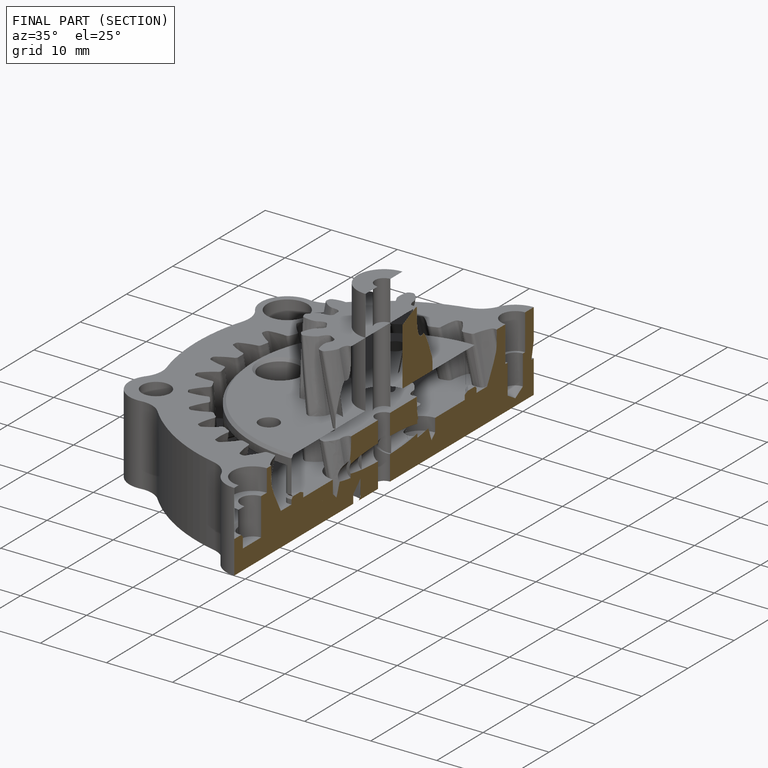
[diagram: finished part — half-section view (interior)]
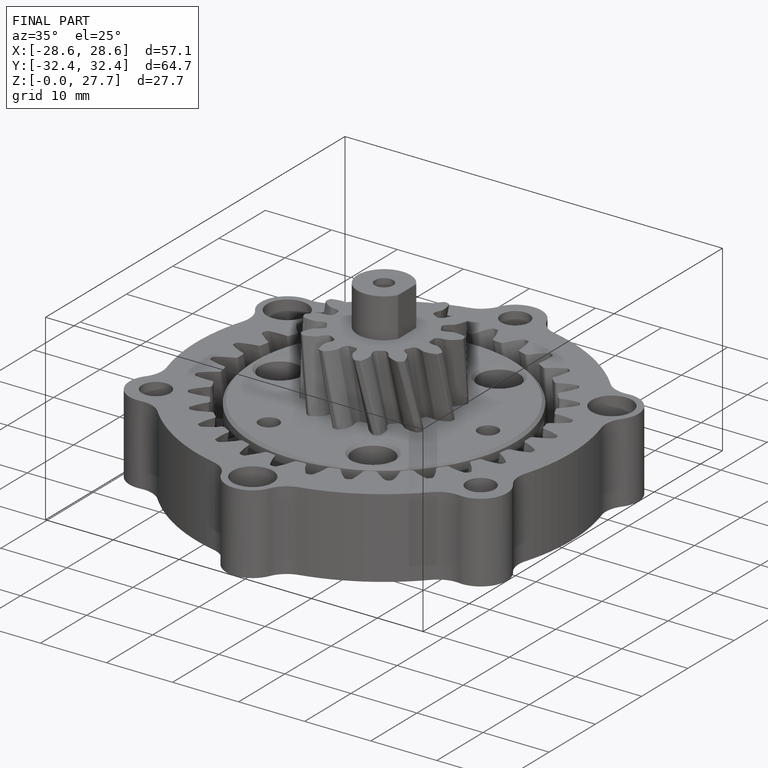
[diagram: finished part — iso view with bounding-box wireframe]
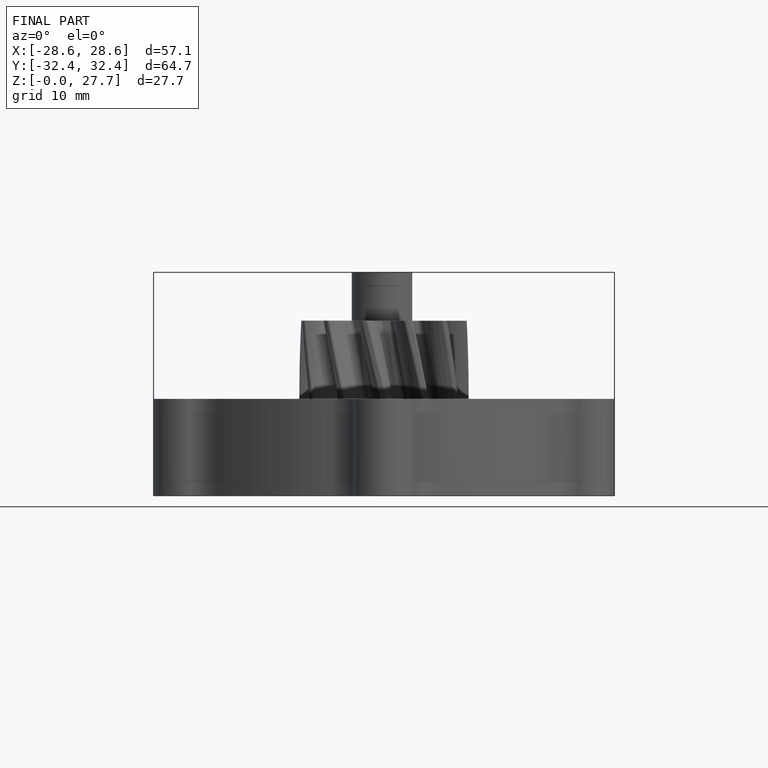
[diagram: finished part — front view with bounding-box wireframe]
